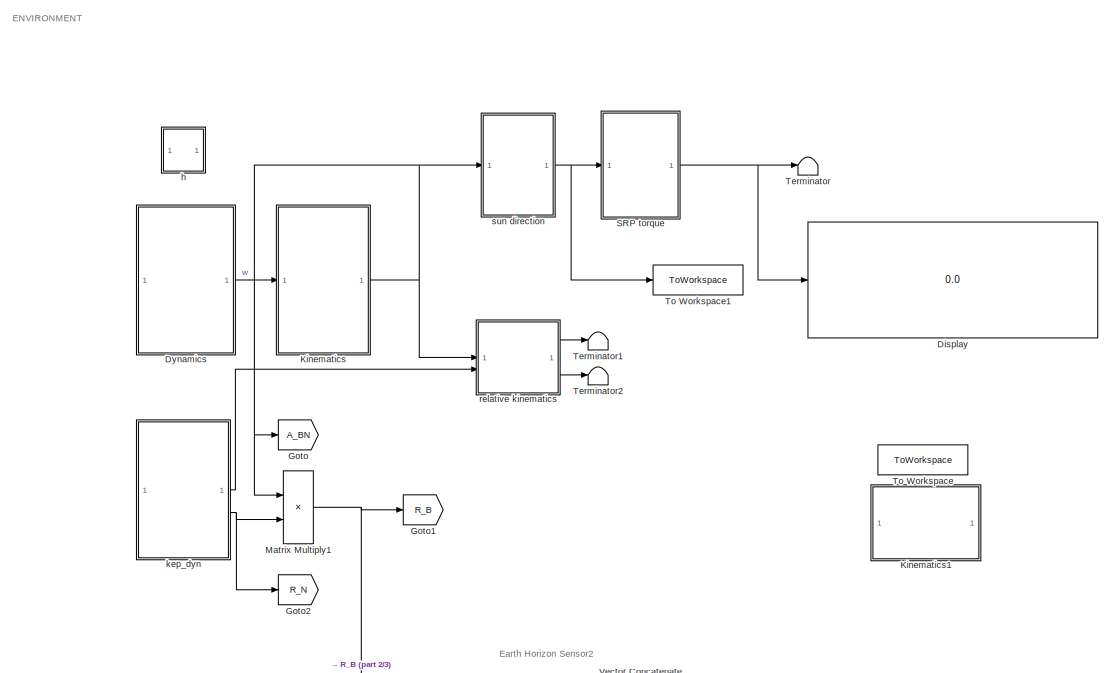
[diagram: root canvas - part 1/3, top left region]
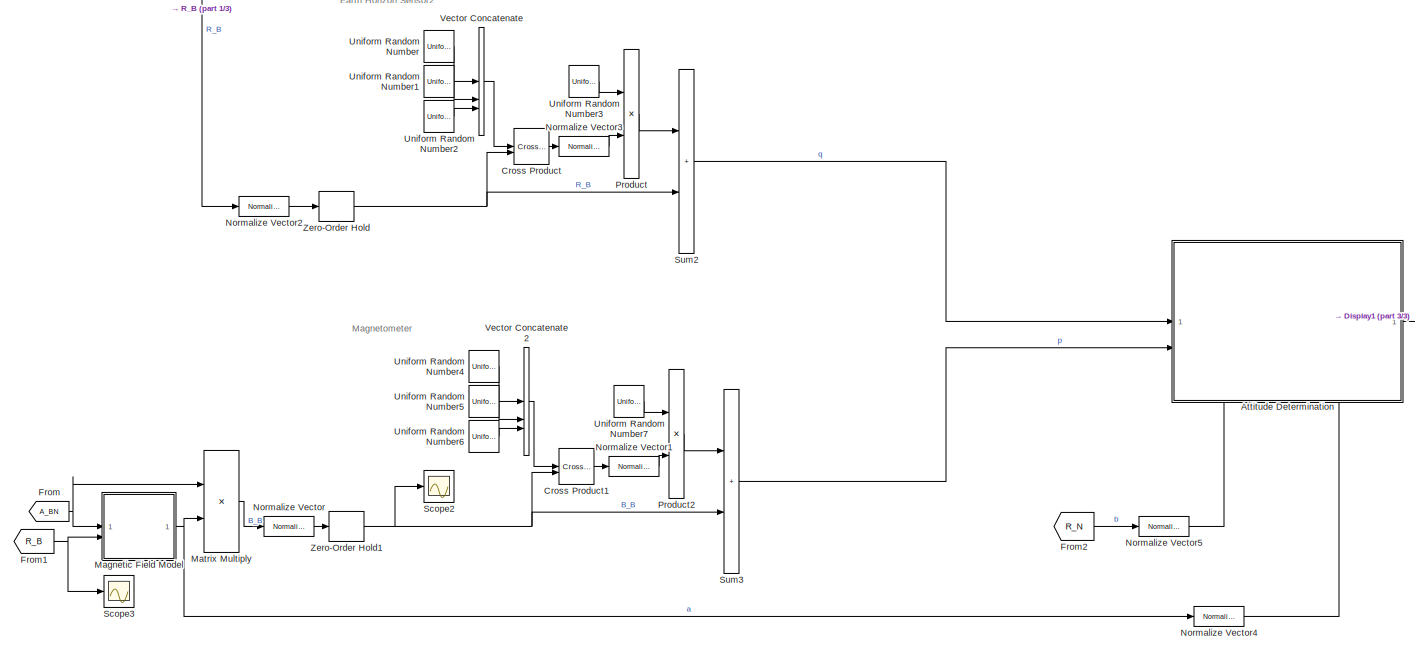
[diagram: root canvas - part 2/3, full width, bottom band]
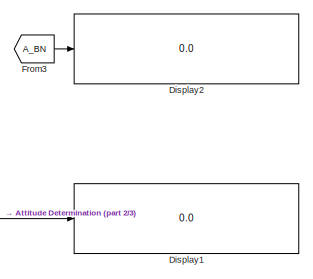
[diagram: root canvas - part 3/3, bottom right region]
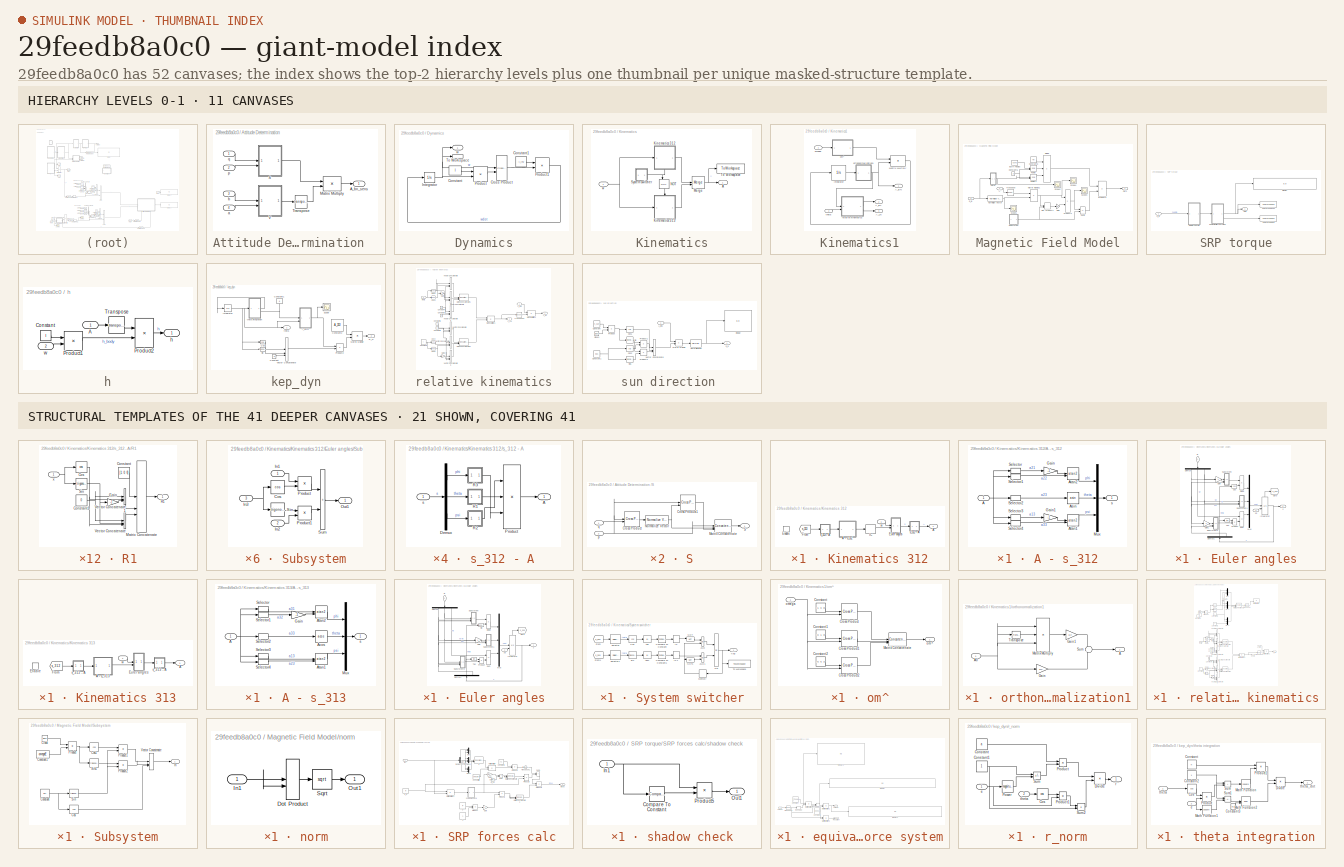
[diagram: thumbnail index - top-2 hierarchy levels (11 canvases) + 21 structural-template representatives of the remaining 41 canvases]
MODEL slx_29feedb8a0c0
KIND model
CONFIG AbsTol = auto
CONFIG EnableMultiTasking = off
CONFIG FixedStep = auto
CONFIG MaxStep = auto
CONFIG MinStep = auto
CONFIG RelTol = 1e-3
CONFIG SampleTimeConstraint = Unconstrained
CONFIG SolverName = VariableStepAuto
CONFIG StartTime = 0.0
CONFIG StopTime = 1000
BLOCK [SubSystem] Attitude Determination  
  PortSchema = {"entries":[{"content":{"sides":[{"content":{"connectorIds":["In1","In2"]},"type":"ConnectorPlacement.EquallySpacedRectSide","uuid":"730966cf-d0d7-44a0-92f0-b5324480e7cc"},{"content":{"connectorIds":["Out1"],"side":"RIGHT"},"type":"ConnectorPlacement.EquallySpacedRectSide","uuid":"c83e6b57-46fe-4a45-9824-d3495e15bf6a"},{"content":{"side":"TOP"},"type":"ConnectorPlacement.EquallySpacedRectSide","uu...<+383ch>
BLOCK [Outport] Attitude Determination  /A_bn_sens
BLOCK [Product] Attitude Determination  /Matrix Multiply
  Multiplication = Matrix(*)
BLOCK [SubSystem] Attitude Determination  /S
BLOCK [Reference] Attitude Determination  /S/Cross Product  REF=matrix_library/Cross Product
  LibrarySourceBlock = simulink/Matrix\nOperations/Cross Product
  SourceBlock = matrix_library/Cross Product
  SourceType = CrossProduct
BLOCK [Reference] Attitude Determination  /S/Cross Product1  REF=matrix_library/Cross Product
  LibrarySourceBlock = simulink/Matrix\nOperations/Cross Product
  SourceBlock = matrix_library/Cross Product
  SourceType = CrossProduct
BLOCK [Concatenate] Attitude Determination  /S/Matrix Concatenate
  ConcatenateDimension = 2
  Mode = Multidimensional array
  NumInputs = 3
BLOCK [Reference] Attitude Determination  /S/Normalize Vector  REF=vrlib/Utilities/Normalize Vector
  SourceBlock = vrlib/Utilities/Normalize Vector
  SourceType = Normalize Vector
BLOCK [Outport] Attitude Determination  /S/S
BLOCK [Inport] Attitude Determination  /S/p
  Port = 2
BLOCK [Inport] Attitude Determination  /S/q
BLOCK [Math] Attitude Determination  /Transpose
  Operator = transpose
BLOCK [SubSystem] Attitude Determination  /V
BLOCK [Reference] Attitude Determination  /V/Cross Product  REF=matrix_library/Cross Product
  LibrarySourceBlock = simulink/Matrix\nOperations/Cross Product
  SourceBlock = matrix_library/Cross Product
  SourceType = CrossProduct
BLOCK [Reference] Attitude Determination  /V/Cross Product1  REF=matrix_library/Cross Product
  LibrarySourceBlock = simulink/Matrix\nOperations/Cross Product
  SourceBlock = matrix_library/Cross Product
  SourceType = CrossProduct
BLOCK [Concatenate] Attitude Determination  /V/Matrix Concatenate
  ConcatenateDimension = 2
  Mode = Multidimensional array
  NumInputs = 3
BLOCK [Reference] Attitude Determination  /V/Normalize Vector  REF=vrlib/Utilities/Normalize Vector
  SourceBlock = vrlib/Utilities/Normalize Vector
  SourceType = Normalize Vector
BLOCK [Outport] Attitude Determination  /V/V
BLOCK [Inport] Attitude Determination  /V/a
  Port = 2
BLOCK [Inport] Attitude Determination  /V/b
BLOCK [Inport] Attitude Determination  /a
  Port = 4
BLOCK [Inport] Attitude Determination  /b
  Port = 3
BLOCK [Inport] Attitude Determination  /p
  Port = 2
BLOCK [Inport] Attitude Determination  /q
BLOCK [Reference] Cross Product  REF=matrix_library/Cross Product
  LibrarySourceBlock = simulink/Matrix\nOperations/Cross Product
  SourceBlock = matrix_library/Cross Product
  SourceType = CrossProduct
BLOCK [Reference] Cross Product1  REF=matrix_library/Cross Product
  LibrarySourceBlock = simulink/Matrix\nOperations/Cross Product
  SourceBlock = matrix_library/Cross Product
  SourceType = CrossProduct
BLOCK [Display] Display
  Commented = on
  Decimation = 1
BLOCK [Display] Display1
  Decimation = 1
BLOCK [Display] Display2
  Decimation = 1
BLOCK [SubSystem] Dynamics
BLOCK [Constant] Dynamics/Constant
  Value = I
BLOCK [Constant] Dynamics/Constant1
  Value = -I_inv
BLOCK [Reference] Dynamics/Cross Product  REF=matrix_library/Cross Product
  LibrarySourceBlock = simulink/Matrix\nOperations/Cross Product
  SourceBlock = matrix_library/Cross Product
  SourceType = CrossProduct
BLOCK [Integrator] Dynamics/Integrator
  InitialCondition = w0
BLOCK [Product] Dynamics/Product
  Multiplication = Matrix(*)
BLOCK [Product] Dynamics/Product1
  Multiplication = Matrix(*)
BLOCK [ToWorkspace] Dynamics/To Workspace
  FixptAsFi = on
  MaxDataPoints = inf
  SampleTime = -1
  SaveFormat = Timeseries
  VariableName = w
BLOCK [Outport] Dynamics/w
BLOCK [From] From
  GotoTag = A_BN
  TagVisibility = global
BLOCK [From] From1
  GotoTag = R_B
  TagVisibility = global
BLOCK [From] From2
  GotoTag = R_N
  TagVisibility = global
BLOCK [From] From3
  GotoTag = A_BN
  TagVisibility = global
BLOCK [Goto] Goto
  GotoTag = A_BN
  TagVisibility = global
BLOCK [Goto] Goto1
  GotoTag = R_B
  TagVisibility = global
BLOCK [Goto] Goto2
  GotoTag = R_N
  TagVisibility = global
BLOCK [SubSystem] Kinematics
BLOCK [Outport] Kinematics/A
BLOCK [SubSystem] Kinematics/Kinematics 312
  NameLocation = top
BLOCK [Outport] Kinematics/Kinematics 312/A
BLOCK [SubSystem] Kinematics/Kinematics 312/A - s_312
BLOCK [Inport] Kinematics/Kinematics 312/A - s_312/A
BLOCK [Trigonometry] Kinematics/Kinematics 312/A - s_312/Asin
  Operator = asin
BLOCK [Trigonometry] Kinematics/Kinematics 312/A - s_312/Atan1
  Operator = atan2
BLOCK [Trigonometry] Kinematics/Kinematics 312/A - s_312/Atan2
  Operator = atan2
BLOCK [Gain] Kinematics/Kinematics 312/A - s_312/Gain
  Gain = -1
BLOCK [Gain] Kinematics/Kinematics 312/A - s_312/Gain1
  Gain = -1
BLOCK [Mux] Kinematics/Kinematics 312/A - s_312/Mux
  DisplayOption = bar
  Inputs = 3
BLOCK [Selector] Kinematics/Kinematics 312/A - s_312/Selector
  IndexOptions = Index vector (dialog),Index vector (dialog)
  Indices = 2,1
  InputPortWidth = 3
  NumberOfDimensions = 2
  OutputSizes = 1,1
BLOCK [Selector] Kinematics/Kinematics 312/A - s_312/Selector1
  IndexOptions = Index vector (dialog),Index vector (dialog)
  Indices = 2,2
  InputPortWidth = 3
  NumberOfDimensions = 2
  OutputSizes = 1,1
BLOCK [Selector] Kinematics/Kinematics 312/A - s_312/Selector2
  IndexOptions = Index vector (dialog),Index vector (dialog)
  Indices = 2,3
  InputPortWidth = 3
  NumberOfDimensions = 2
  OutputSizes = 1,1
BLOCK [Selector] Kinematics/Kinematics 312/A - s_312/Selector3
  IndexOptions = Index vector (dialog),Index vector (dialog)
  Indices = 1,3
  InputPortWidth = 3
  NumberOfDimensions = 2
  OutputSizes = 1,1
BLOCK [Selector] Kinematics/Kinematics 312/A - s_312/Selector4
  IndexOptions = Index vector (dialog),Index vector (dialog)
  Indices = 3,3
  InputPortWidth = 3
  NumberOfDimensions = 2
  OutputSizes = 1,1
BLOCK [Outport] Kinematics/Kinematics 312/A - s_312/s
BLOCK [EnablePort] Kinematics/Kinematics 312/Enable
  StatesWhenEnabling = reset
BLOCK [SubSystem] Kinematics/Kinematics 312/Euler angles
BLOCK [Trigonometry] Kinematics/Kinematics 312/Euler angles/Cos
  Operator = cos
BLOCK [Demux] Kinematics/Kinematics 312/Euler angles/Demux
  NameLocation = left
  Outputs = 3
BLOCK [Demux] Kinematics/Kinematics 312/Euler angles/Demux1
  NameLocation = right
  Outputs = 3
BLOCK [Product] Kinematics/Kinematics 312/Euler angles/Divide
  Inputs = */
BLOCK [Gain] Kinematics/Kinematics 312/Euler angles/Gain
  Gain = -1
BLOCK [Gain] Kinematics/Kinematics 312/Euler angles/Gain1
  Gain = -1
BLOCK [Goto] Kinematics/Kinematics 312/Euler angles/Goto
  GotoTag = s_312
  TagVisibility = global
BLOCK [Integrator] Kinematics/Kinematics 312/Euler angles/Integrator
  InitialCondition = s0
  InitialConditionSource = external
  ShowStatePort = on
  WrapState = on
  WrappedStateLowerValue = 0
  WrappedStateUpperValue = 2*pi
BLOCK [Mux] Kinematics/Kinematics 312/Euler angles/Mux
  DisplayOption = bar
  Inputs = 3
BLOCK [Product] Kinematics/Kinematics 312/Euler angles/Product
BLOCK [SubSystem] Kinematics/Kinematics 312/Euler angles/Subsystem
BLOCK [Trigonometry] Kinematics/Kinematics 312/Euler angles/Subsystem/Cos
  Operator = cos
BLOCK [Inport] Kinematics/Kinematics 312/Euler angles/Subsystem/In1
BLOCK [Inport] Kinematics/Kinematics 312/Euler angles/Subsystem/In2
  Port = 2
BLOCK [Inport] Kinematics/Kinematics 312/Euler angles/Subsystem/In3
  Port = 3
BLOCK [Outport] Kinematics/Kinematics 312/Euler angles/Subsystem/Out1
BLOCK [Product] Kinematics/Kinematics 312/Euler angles/Subsystem/Product
BLOCK [Product] Kinematics/Kinematics 312/Euler angles/Subsystem/Product1
BLOCK [Trigonometry] Kinematics/Kinematics 312/Euler angles/Subsystem/Sin
BLOCK [Sum] Kinematics/Kinematics 312/Euler angles/Subsystem/Sum
  IconShape = rectangular
BLOCK [SubSystem] Kinematics/Kinematics 312/Euler angles/Subsystem1
BLOCK [Trigonometry] Kinematics/Kinematics 312/Euler angles/Subsystem1/Cos
  Operator = cos
BLOCK [Inport] Kinematics/Kinematics 312/Euler angles/Subsystem1/In1
BLOCK [Inport] Kinematics/Kinematics 312/Euler angles/Subsystem1/In2
  Port = 2
BLOCK [Inport] Kinematics/Kinematics 312/Euler angles/Subsystem1/In3
  Port = 3
BLOCK [Outport] Kinematics/Kinematics 312/Euler angles/Subsystem1/Out1
BLOCK [Product] Kinematics/Kinematics 312/Euler angles/Subsystem1/Product
BLOCK [Product] Kinematics/Kinematics 312/Euler angles/Subsystem1/Product1
BLOCK [Trigonometry] Kinematics/Kinematics 312/Euler angles/Subsystem1/Sin
BLOCK [Sum] Kinematics/Kinematics 312/Euler angles/Subsystem1/Sum
  IconShape = rectangular
BLOCK [SubSystem] Kinematics/Kinematics 312/Euler angles/Subsystem2
BLOCK [Trigonometry] Kinematics/Kinematics 312/Euler angles/Subsystem2/Cos
  Operator = cos
BLOCK [Inport] Kinematics/Kinematics 312/Euler angles/Subsystem2/In1
BLOCK [Inport] Kinematics/Kinematics 312/Euler angles/Subsystem2/In2
  Port = 2
BLOCK [Inport] Kinematics/Kinematics 312/Euler angles/Subsystem2/In3
  Port = 3
BLOCK [Outport] Kinematics/Kinematics 312/Euler angles/Subsystem2/Out1
BLOCK [Product] Kinematics/Kinematics 312/Euler angles/Subsystem2/Product
BLOCK [Product] Kinematics/Kinematics 312/Euler angles/Subsystem2/Product1
BLOCK [Trigonometry] Kinematics/Kinematics 312/Euler angles/Subsystem2/Sin
BLOCK [Sum] Kinematics/Kinematics 312/Euler angles/Subsystem2/Sum
  IconShape = rectangular
BLOCK [Sum] Kinematics/Kinematics 312/Euler angles/Sum
  IconShape = rectangular
  Inputs = +-
BLOCK [Trigonometry] Kinematics/Kinematics 312/Euler angles/Tan
  Operator = tan
BLOCK [Outport] Kinematics/Kinematics 312/Euler angles/s
BLOCK [Inport] Kinematics/Kinematics 312/Euler angles/s0
  Port = 2
BLOCK [Inport] Kinematics/Kinematics 312/Euler angles/w
  NameLocation = left
BLOCK [From] Kinematics/Kinematics 312/From
  GotoTag = s_313
  TagVisibility = global
BLOCK [InitialCondition] Kinematics/Kinematics 312/IC
  Value = s0
BLOCK [SubSystem] Kinematics/Kinematics 312/s_312 - A
BLOCK [Outport] Kinematics/Kinematics 312/s_312 - A/A
BLOCK [Demux] Kinematics/Kinematics 312/s_312 - A/Demux
  Outputs = 3
BLOCK [Product] Kinematics/Kinematics 312/s_312 - A/Product
  Inputs = 3
  Multiplication = Matrix(*)
BLOCK [SubSystem] Kinematics/Kinematics 312/s_312 - A/R1
BLOCK [Constant] Kinematics/Kinematics 312/s_312 - A/R1/Constant
  Value = [1; 0; 0]
BLOCK [Constant] Kinematics/Kinematics 312/s_312 - A/R1/Constant1
  Value = 0
BLOCK [Trigonometry] Kinematics/Kinematics 312/s_312 - A/R1/Cos
  Operator = cos
BLOCK [Gain] Kinematics/Kinematics 312/s_312 - A/R1/Gain
  Gain = -1
BLOCK [Concatenate] Kinematics/Kinematics 312/s_312 - A/R1/Matrix Concatenate
  ConcatenateDimension = 2
  Mode = Multidimensional array
  NumInputs = 3
BLOCK [Outport] Kinematics/Kinematics 312/s_312 - A/R1/R1
BLOCK [Trigonometry] Kinematics/Kinematics 312/s_312 - A/R1/Sin
BLOCK [Concatenate] Kinematics/Kinematics 312/s_312 - A/R1/Vector Concatenate
  NumInputs = 3
BLOCK [Concatenate] Kinematics/Kinematics 312/s_312 - A/R1/Vector Concatenate1
  NumInputs = 3
BLOCK [Inport] Kinematics/Kinematics 312/s_312 - A/R1/x
BLOCK [SubSystem] Kinematics/Kinematics 312/s_312 - A/R2
BLOCK [Constant] Kinematics/Kinematics 312/s_312 - A/R2/Constant
  Value = [0; 1; 0]
BLOCK [Constant] Kinematics/Kinematics 312/s_312 - A/R2/Constant1
  Value = 0
BLOCK [Trigonometry] Kinematics/Kinematics 312/s_312 - A/R2/Cos
  Operator = cos
BLOCK [Gain] Kinematics/Kinematics 312/s_312 - A/R2/Gain
  Gain = -1
BLOCK [Concatenate] Kinematics/Kinematics 312/s_312 - A/R2/Matrix Concatenate
  ConcatenateDimension = 2
  Mode = Multidimensional array
  NumInputs = 3
BLOCK [Outport] Kinematics/Kinematics 312/s_312 - A/R2/R2
BLOCK [Trigonometry] Kinematics/Kinematics 312/s_312 - A/R2/Sin
BLOCK [Concatenate] Kinematics/Kinematics 312/s_312 - A/R2/Vector Concatenate
  NumInputs = 3
BLOCK [Concatenate] Kinematics/Kinematics 312/s_312 - A/R2/Vector Concatenate1
  NumInputs = 3
BLOCK [Inport] Kinematics/Kinematics 312/s_312 - A/R2/x
BLOCK [SubSystem] Kinematics/Kinematics 312/s_312 - A/R3
BLOCK [Constant] Kinematics/Kinematics 312/s_312 - A/R3/Constant
  Value = [0; 0; 1]
BLOCK [Constant] Kinematics/Kinematics 312/s_312 - A/R3/Constant1
  Value = 0
BLOCK [Trigonometry] Kinematics/Kinematics 312/s_312 - A/R3/Cos
  Operator = cos
BLOCK [Gain] Kinematics/Kinematics 312/s_312 - A/R3/Gain
  Gain = -1
BLOCK [Concatenate] Kinematics/Kinematics 312/s_312 - A/R3/Matrix Concatenate
  ConcatenateDimension = 2
  Mode = Multidimensional array
  NumInputs = 3
BLOCK [Outport] Kinematics/Kinematics 312/s_312 - A/R3/R3
BLOCK [Trigonometry] Kinematics/Kinematics 312/s_312 - A/R3/Sin
BLOCK [Concatenate] Kinematics/Kinematics 312/s_312 - A/R3/Vector Concatenate
  NumInputs = 3
BLOCK [Concatenate] Kinematics/Kinematics 312/s_312 - A/R3/Vector Concatenate1
  NumInputs = 3
BLOCK [Inport] Kinematics/Kinematics 312/s_312 - A/R3/x
BLOCK [Inport] Kinematics/Kinematics 312/s_312 - A/s
BLOCK [SubSystem] Kinematics/Kinematics 312/s_313 - A
BLOCK [Outport] Kinematics/Kinematics 312/s_313 - A/A
BLOCK [Demux] Kinematics/Kinematics 312/s_313 - A/Demux
  Outputs = 3
BLOCK [Product] Kinematics/Kinematics 312/s_313 - A/Product
  Inputs = 3
  Multiplication = Matrix(*)
BLOCK [SubSystem] Kinematics/Kinematics 312/s_313 - A/R1
BLOCK [Constant] Kinematics/Kinematics 312/s_313 - A/R1/Constant
  Value = [1; 0; 0]
BLOCK [Constant] Kinematics/Kinematics 312/s_313 - A/R1/Constant1
  Value = 0
BLOCK [Trigonometry] Kinematics/Kinematics 312/s_313 - A/R1/Cos
  Operator = cos
BLOCK [Gain] Kinematics/Kinematics 312/s_313 - A/R1/Gain
  Gain = -1
BLOCK [Concatenate] Kinematics/Kinematics 312/s_313 - A/R1/Matrix Concatenate
  ConcatenateDimension = 2
  Mode = Multidimensional array
  NumInputs = 3
BLOCK [Outport] Kinematics/Kinematics 312/s_313 - A/R1/R1
BLOCK [Trigonometry] Kinematics/Kinematics 312/s_313 - A/R1/Sin
BLOCK [Concatenate] Kinematics/Kinematics 312/s_313 - A/R1/Vector Concatenate
  NumInputs = 3
BLOCK [Concatenate] Kinematics/Kinematics 312/s_313 - A/R1/Vector Concatenate1
  NumInputs = 3
BLOCK [Inport] Kinematics/Kinematics 312/s_313 - A/R1/x
BLOCK [SubSystem] Kinematics/Kinematics 312/s_313 - A/R3_1
BLOCK [Constant] Kinematics/Kinematics 312/s_313 - A/R3_1/Constant
  Value = [0; 0; 1]
BLOCK [Constant] Kinematics/Kinematics 312/s_313 - A/R3_1/Constant1
  Value = 0
BLOCK [Trigonometry] Kinematics/Kinematics 312/s_313 - A/R3_1/Cos
  Operator = cos
BLOCK [Gain] Kinematics/Kinematics 312/s_313 - A/R3_1/Gain
  Gain = -1
BLOCK [Concatenate] Kinematics/Kinematics 312/s_313 - A/R3_1/Matrix Concatenate
  ConcatenateDimension = 2
  Mode = Multidimensional array
  NumInputs = 3
BLOCK [Outport] Kinematics/Kinematics 312/s_313 - A/R3_1/R3
BLOCK [Trigonometry] Kinematics/Kinematics 312/s_313 - A/R3_1/Sin
BLOCK [Concatenate] Kinematics/Kinematics 312/s_313 - A/R3_1/Vector Concatenate
  NumInputs = 3
BLOCK [Concatenate] Kinematics/Kinematics 312/s_313 - A/R3_1/Vector Concatenate1
  NumInputs = 3
BLOCK [Inport] Kinematics/Kinematics 312/s_313 - A/R3_1/x
BLOCK [SubSystem] Kinematics/Kinematics 312/s_313 - A/R3_2
BLOCK [Constant] Kinematics/Kinematics 312/s_313 - A/R3_2/Constant
  Value = [0; 0; 1]
BLOCK [Constant] Kinematics/Kinematics 312/s_313 - A/R3_2/Constant1
  Value = 0
BLOCK [Trigonometry] Kinematics/Kinematics 312/s_313 - A/R3_2/Cos
  Operator = cos
BLOCK [Gain] Kinematics/Kinematics 312/s_313 - A/R3_2/Gain
  Gain = -1
BLOCK [Concatenate] Kinematics/Kinematics 312/s_313 - A/R3_2/Matrix Concatenate
  ConcatenateDimension = 2
  Mode = Multidimensional array
  NumInputs = 3
BLOCK [Outport] Kinematics/Kinematics 312/s_313 - A/R3_2/R3
BLOCK [Trigonometry] Kinematics/Kinematics 312/s_313 - A/R3_2/Sin
BLOCK [Concatenate] Kinematics/Kinematics 312/s_313 - A/R3_2/Vector Concatenate
  NumInputs = 3
BLOCK [Concatenate] Kinematics/Kinematics 312/s_313 - A/R3_2/Vector Concatenate1
  NumInputs = 3
BLOCK [Inport] Kinematics/Kinematics 312/s_313 - A/R3_2/x
BLOCK [Inport] Kinematics/Kinematics 312/s_313 - A/s
BLOCK [Inport] Kinematics/Kinematics 312/w
BLOCK [SubSystem] Kinematics/Kinematics 313
BLOCK [Outport] Kinematics/Kinematics 313/A
BLOCK [SubSystem] Kinematics/Kinematics 313/A - s_313
BLOCK [Inport] Kinematics/Kinematics 313/A - s_313/A
BLOCK [Trigonometry] Kinematics/Kinematics 313/A - s_313/Acos
  Operator = acos
BLOCK [Trigonometry] Kinematics/Kinematics 313/A - s_313/Atan1
  Operator = atan2
BLOCK [Trigonometry] Kinematics/Kinematics 313/A - s_313/Atan2
  Operator = atan2
BLOCK [Gain] Kinematics/Kinematics 313/A - s_313/Gain
  Gain = -1
BLOCK [Mux] Kinematics/Kinematics 313/A - s_313/Mux
  DisplayOption = bar
  Inputs = 3
BLOCK [Selector] Kinematics/Kinematics 313/A - s_313/Selector
  IndexOptions = Index vector (dialog),Index vector (dialog)
  Indices = 3,1
  InputPortWidth = 3
  NumberOfDimensions = 2
  OutputSizes = 1,1
BLOCK [Selector] Kinematics/Kinematics 313/A - s_313/Selector1
  IndexOptions = Index vector (dialog),Index vector (dialog)
  Indices = 3,2
  InputPortWidth = 3
  NumberOfDimensions = 2
  OutputSizes = 1,1
BLOCK [Selector] Kinematics/Kinematics 313/A - s_313/Selector2
  IndexOptions = Index vector (dialog),Index vector (dialog)
  Indices = 3,3
  InputPortWidth = 3
  NumberOfDimensions = 2
  OutputSizes = 1,1
BLOCK [Selector] Kinematics/Kinematics 313/A - s_313/Selector3
  IndexOptions = Index vector (dialog),Index vector (dialog)
  Indices = 1,3
  InputPortWidth = 3
  NumberOfDimensions = 2
  OutputSizes = 1,1
BLOCK [Selector] Kinematics/Kinematics 313/A - s_313/Selector4
  IndexOptions = Index vector (dialog),Index vector (dialog)
  Indices = 2,3
  InputPortWidth = 3
  NumberOfDimensions = 2
  OutputSizes = 1,1
BLOCK [Outport] Kinematics/Kinematics 313/A - s_313/s
BLOCK [EnablePort] Kinematics/Kinematics 313/Enable
  StatesWhenEnabling = reset
BLOCK [SubSystem] Kinematics/Kinematics 313/Euler angles
BLOCK [Demux] Kinematics/Kinematics 313/Euler angles/Demux
  NameLocation = left
  Outputs = 3
BLOCK [Demux] Kinematics/Kinematics 313/Euler angles/Demux1
  NameLocation = right
  Outputs = 3
BLOCK [Product] Kinematics/Kinematics 313/Euler angles/Divide
  Inputs = */
BLOCK [Gain] Kinematics/Kinematics 313/Euler angles/Gain
  Gain = -1
BLOCK [Goto] Kinematics/Kinematics 313/Euler angles/Goto
  GotoTag = s_313
  TagVisibility = global
BLOCK [Integrator] Kinematics/Kinematics 313/Euler angles/Integrator
  InitialCondition = s0
  InitialConditionSource = external
  ShowStatePort = on
  WrapState = on
  WrappedStateLowerValue = 0
  WrappedStateUpperValue = 2*pi
BLOCK [Mux] Kinematics/Kinematics 313/Euler angles/Mux
  DisplayOption = bar
  Inputs = 3
BLOCK [Product] Kinematics/Kinematics 313/Euler angles/Product
  Inputs = /*
BLOCK [Trigonometry] Kinematics/Kinematics 313/Euler angles/Sin
BLOCK [SubSystem] Kinematics/Kinematics 313/Euler angles/Subsystem
BLOCK [Trigonometry] Kinematics/Kinematics 313/Euler angles/Subsystem/Cos
  Operator = cos
BLOCK [Inport] Kinematics/Kinematics 313/Euler angles/Subsystem/In1
BLOCK [Inport] Kinematics/Kinematics 313/Euler angles/Subsystem/In2
  Port = 2
BLOCK [Inport] Kinematics/Kinematics 313/Euler angles/Subsystem/In3
  Port = 3
BLOCK [Outport] Kinematics/Kinematics 313/Euler angles/Subsystem/Out1
BLOCK [Product] Kinematics/Kinematics 313/Euler angles/Subsystem/Product
BLOCK [Product] Kinematics/Kinematics 313/Euler angles/Subsystem/Product1
BLOCK [Trigonometry] Kinematics/Kinematics 313/Euler angles/Subsystem/Sin
BLOCK [Sum] Kinematics/Kinematics 313/Euler angles/Subsystem/Sum
  IconShape = rectangular
BLOCK [SubSystem] Kinematics/Kinematics 313/Euler angles/Subsystem1
BLOCK [Trigonometry] Kinematics/Kinematics 313/Euler angles/Subsystem1/Cos
  Operator = cos
BLOCK [Inport] Kinematics/Kinematics 313/Euler angles/Subsystem1/In1
BLOCK [Inport] Kinematics/Kinematics 313/Euler angles/Subsystem1/In2
  Port = 2
BLOCK [Inport] Kinematics/Kinematics 313/Euler angles/Subsystem1/In3
  Port = 3
BLOCK [Outport] Kinematics/Kinematics 313/Euler angles/Subsystem1/Out1
BLOCK [Product] Kinematics/Kinematics 313/Euler angles/Subsystem1/Product
BLOCK [Product] Kinematics/Kinematics 313/Euler angles/Subsystem1/Product1
BLOCK [Trigonometry] Kinematics/Kinematics 313/Euler angles/Subsystem1/Sin
BLOCK [Sum] Kinematics/Kinematics 313/Euler angles/Subsystem1/Sum
  IconShape = rectangular
BLOCK [SubSystem] Kinematics/Kinematics 313/Euler angles/Subsystem2
BLOCK [Trigonometry] Kinematics/Kinematics 313/Euler angles/Subsystem2/Cos
  Operator = cos
BLOCK [Inport] Kinematics/Kinematics 313/Euler angles/Subsystem2/In1
BLOCK [Inport] Kinematics/Kinematics 313/Euler angles/Subsystem2/In2
  Port = 2
BLOCK [Inport] Kinematics/Kinematics 313/Euler angles/Subsystem2/In3
  Port = 3
BLOCK [Outport] Kinematics/Kinematics 313/Euler angles/Subsystem2/Out1
BLOCK [Product] Kinematics/Kinematics 313/Euler angles/Subsystem2/Product
BLOCK [Product] Kinematics/Kinematics 313/Euler angles/Subsystem2/Product1
BLOCK [Trigonometry] Kinematics/Kinematics 313/Euler angles/Subsystem2/Sin
BLOCK [Sum] Kinematics/Kinematics 313/Euler angles/Subsystem2/Sum
  IconShape = rectangular
BLOCK [Sum] Kinematics/Kinematics 313/Euler angles/Sum
  IconShape = rectangular
  Inputs = +-
BLOCK [Trigonometry] Kinematics/Kinematics 313/Euler angles/Tan
  Operator = tan
BLOCK [Outport] Kinematics/Kinematics 313/Euler angles/s
BLOCK [Inport] Kinematics/Kinematics 313/Euler angles/s0
  Port = 2
BLOCK [Inport] Kinematics/Kinematics 313/Euler angles/w
  NameLocation = left
BLOCK [From] Kinematics/Kinematics 313/From
  GotoTag = s_312
  TagVisibility = global
BLOCK [SubSystem] Kinematics/Kinematics 313/s_312 - A
BLOCK [Outport] Kinematics/Kinematics 313/s_312 - A/A
BLOCK [Demux] Kinematics/Kinematics 313/s_312 - A/Demux
  NameLocation = top
  Outputs = 3
BLOCK [Product] Kinematics/Kinematics 313/s_312 - A/Product
  Inputs = 3
  Multiplication = Matrix(*)
BLOCK [SubSystem] Kinematics/Kinematics 313/s_312 - A/R1
BLOCK [Constant] Kinematics/Kinematics 313/s_312 - A/R1/Constant
  Value = [1; 0; 0]
BLOCK [Constant] Kinematics/Kinematics 313/s_312 - A/R1/Constant1
  Value = 0
BLOCK [Trigonometry] Kinematics/Kinematics 313/s_312 - A/R1/Cos
  Operator = cos
BLOCK [Gain] Kinematics/Kinematics 313/s_312 - A/R1/Gain
  Gain = -1
BLOCK [Concatenate] Kinematics/Kinematics 313/s_312 - A/R1/Matrix Concatenate
  ConcatenateDimension = 2
  Mode = Multidimensional array
  NumInputs = 3
BLOCK [Outport] Kinematics/Kinematics 313/s_312 - A/R1/R1
BLOCK [Trigonometry] Kinematics/Kinematics 313/s_312 - A/R1/Sin
BLOCK [Concatenate] Kinematics/Kinematics 313/s_312 - A/R1/Vector Concatenate
  NumInputs = 3
BLOCK [Concatenate] Kinematics/Kinematics 313/s_312 - A/R1/Vector Concatenate1
  NumInputs = 3
BLOCK [Inport] Kinematics/Kinematics 313/s_312 - A/R1/x
BLOCK [SubSystem] Kinematics/Kinematics 313/s_312 - A/R2
BLOCK [Constant] Kinematics/Kinematics 313/s_312 - A/R2/Constant
  Value = [0; 1; 0]
BLOCK [Constant] Kinematics/Kinematics 313/s_312 - A/R2/Constant1
  Value = 0
BLOCK [Trigonometry] Kinematics/Kinematics 313/s_312 - A/R2/Cos
  Operator = cos
BLOCK [Gain] Kinematics/Kinematics 313/s_312 - A/R2/Gain
  Gain = -1
BLOCK [Concatenate] Kinematics/Kinematics 313/s_312 - A/R2/Matrix Concatenate
  ConcatenateDimension = 2
  Mode = Multidimensional array
  NumInputs = 3
BLOCK [Outport] Kinematics/Kinematics 313/s_312 - A/R2/R2
BLOCK [Trigonometry] Kinematics/Kinematics 313/s_312 - A/R2/Sin
BLOCK [Concatenate] Kinematics/Kinematics 313/s_312 - A/R2/Vector Concatenate
  NumInputs = 3
BLOCK [Concatenate] Kinematics/Kinematics 313/s_312 - A/R2/Vector Concatenate1
  NumInputs = 3
BLOCK [Inport] Kinematics/Kinematics 313/s_312 - A/R2/x
BLOCK [SubSystem] Kinematics/Kinematics 313/s_312 - A/R3
BLOCK [Constant] Kinematics/Kinematics 313/s_312 - A/R3/Constant
  Value = [0; 0; 1]
BLOCK [Constant] Kinematics/Kinematics 313/s_312 - A/R3/Constant1
  Value = 0
BLOCK [Trigonometry] Kinematics/Kinematics 313/s_312 - A/R3/Cos
  Operator = cos
BLOCK [Gain] Kinematics/Kinematics 313/s_312 - A/R3/Gain
  Gain = -1
BLOCK [Concatenate] Kinematics/Kinematics 313/s_312 - A/R3/Matrix Concatenate
  ConcatenateDimension = 2
  Mode = Multidimensional array
  NumInputs = 3
BLOCK [Outport] Kinematics/Kinematics 313/s_312 - A/R3/R3
BLOCK [Trigonometry] Kinematics/Kinematics 313/s_312 - A/R3/Sin
BLOCK [Concatenate] Kinematics/Kinematics 313/s_312 - A/R3/Vector Concatenate
  NumInputs = 3
BLOCK [Concatenate] Kinematics/Kinematics 313/s_312 - A/R3/Vector Concatenate1
  NumInputs = 3
BLOCK [Inport] Kinematics/Kinematics 313/s_312 - A/R3/x
BLOCK [Inport] Kinematics/Kinematics 313/s_312 - A/s
BLOCK [SubSystem] Kinematics/Kinematics 313/s_313 - A
BLOCK [Outport] Kinematics/Kinematics 313/s_313 - A/A
BLOCK [Demux] Kinematics/Kinematics 313/s_313 - A/Demux
  Outputs = 3
BLOCK [Product] Kinematics/Kinematics 313/s_313 - A/Product
  Inputs = 3
  Multiplication = Matrix(*)
BLOCK [SubSystem] Kinematics/Kinematics 313/s_313 - A/R1
BLOCK [Constant] Kinematics/Kinematics 313/s_313 - A/R1/Constant
  Value = [1; 0; 0]
BLOCK [Constant] Kinematics/Kinematics 313/s_313 - A/R1/Constant1
  Value = 0
BLOCK [Trigonometry] Kinematics/Kinematics 313/s_313 - A/R1/Cos
  Operator = cos
BLOCK [Gain] Kinematics/Kinematics 313/s_313 - A/R1/Gain
  Gain = -1
BLOCK [Concatenate] Kinematics/Kinematics 313/s_313 - A/R1/Matrix Concatenate
  ConcatenateDimension = 2
  Mode = Multidimensional array
  NumInputs = 3
BLOCK [Outport] Kinematics/Kinematics 313/s_313 - A/R1/R1
BLOCK [Trigonometry] Kinematics/Kinematics 313/s_313 - A/R1/Sin
BLOCK [Concatenate] Kinematics/Kinematics 313/s_313 - A/R1/Vector Concatenate
  NumInputs = 3
BLOCK [Concatenate] Kinematics/Kinematics 313/s_313 - A/R1/Vector Concatenate1
  NumInputs = 3
BLOCK [Inport] Kinematics/Kinematics 313/s_313 - A/R1/x
BLOCK [SubSystem] Kinematics/Kinematics 313/s_313 - A/R3_1
BLOCK [Constant] Kinematics/Kinematics 313/s_313 - A/R3_1/Constant
  Value = [0; 0; 1]
BLOCK [Constant] Kinematics/Kinematics 313/s_313 - A/R3_1/Constant1
  Value = 0
BLOCK [Trigonometry] Kinematics/Kinematics 313/s_313 - A/R3_1/Cos
  Operator = cos
BLOCK [Gain] Kinematics/Kinematics 313/s_313 - A/R3_1/Gain
  Gain = -1
BLOCK [Concatenate] Kinematics/Kinematics 313/s_313 - A/R3_1/Matrix Concatenate
  ConcatenateDimension = 2
  Mode = Multidimensional array
  NumInputs = 3
BLOCK [Outport] Kinematics/Kinematics 313/s_313 - A/R3_1/R3
BLOCK [Trigonometry] Kinematics/Kinematics 313/s_313 - A/R3_1/Sin
BLOCK [Concatenate] Kinematics/Kinematics 313/s_313 - A/R3_1/Vector Concatenate
  NumInputs = 3
BLOCK [Concatenate] Kinematics/Kinematics 313/s_313 - A/R3_1/Vector Concatenate1
  NumInputs = 3
BLOCK [Inport] Kinematics/Kinematics 313/s_313 - A/R3_1/x
BLOCK [SubSystem] Kinematics/Kinematics 313/s_313 - A/R3_2
BLOCK [Constant] Kinematics/Kinematics 313/s_313 - A/R3_2/Constant
  Value = [0; 0; 1]
BLOCK [Constant] Kinematics/Kinematics 313/s_313 - A/R3_2/Constant1
  Value = 0
BLOCK [Trigonometry] Kinematics/Kinematics 313/s_313 - A/R3_2/Cos
  Operator = cos
BLOCK [Gain] Kinematics/Kinematics 313/s_313 - A/R3_2/Gain
  Gain = -1
BLOCK [Concatenate] Kinematics/Kinematics 313/s_313 - A/R3_2/Matrix Concatenate
  ConcatenateDimension = 2
  Mode = Multidimensional array
  NumInputs = 3
BLOCK [Outport] Kinematics/Kinematics 313/s_313 - A/R3_2/R3
BLOCK [Trigonometry] Kinematics/Kinematics 313/s_313 - A/R3_2/Sin
BLOCK [Concatenate] Kinematics/Kinematics 313/s_313 - A/R3_2/Vector Concatenate
  NumInputs = 3
BLOCK [Concatenate] Kinematics/Kinematics 313/s_313 - A/R3_2/Vector Concatenate1
  NumInputs = 3
BLOCK [Inport] Kinematics/Kinematics 313/s_313 - A/R3_2/x
BLOCK [Inport] Kinematics/Kinematics 313/s_313 - A/s
BLOCK [Inport] Kinematics/Kinematics 313/w
BLOCK [Merge] Kinematics/Merge
BLOCK [Logic] Kinematics/NOT
  AllPortsSameDT = off
  IconShape = distinctive
  NameLocation = left
  Operator = NOT
  OutDataTypeStr = boolean
BLOCK [SubSystem] Kinematics/System switcher
BLOCK [Logic] Kinematics/System switcher/AND
  AllPortsSameDT = off
  IconShape = distinctive
  OutDataTypeStr = boolean
BLOCK [Logic] Kinematics/System switcher/AND1
  AllPortsSameDT = off
  IconShape = distinctive
  OutDataTypeStr = boolean
BLOCK [Abs] Kinematics/System switcher/Abs
  SaturateOnIntegerOverflow = off
BLOCK [Abs] Kinematics/System switcher/Abs1
  SaturateOnIntegerOverflow = off
BLOCK [Reference] Kinematics/System switcher/Compare To Constant  REF=simulink/Logic and Bit
Operations/Compare
To Constant
  SourceBlock = simulink/Logic and Bit\nOperations/Compare\nTo Constant
  SourceType = Compare To Constant
BLOCK [Reference] Kinematics/System switcher/Compare To Constant1  REF=simulink/Logic and Bit
Operations/Compare
To Constant
  SourceBlock = simulink/Logic and Bit\nOperations/Compare\nTo Constant
  SourceType = Compare To Constant
BLOCK [Trigonometry] Kinematics/System switcher/Cos
  Operator = cos
BLOCK [From] Kinematics/System switcher/From
  GotoTag = s_312
  TagVisibility = global
BLOCK [From] Kinematics/System switcher/From1
  GotoTag = s_313
  TagVisibility = global
BLOCK [InitialCondition] Kinematics/System switcher/IC
  Value = 0
BLOCK [InitialCondition] Kinematics/System switcher/IC1
  Value = 0
BLOCK [Memory] Kinematics/System switcher/Memory
  InitialCondition = 1
  NameLocation = top
BLOCK [Logic] Kinematics/System switcher/NOT
  AllPortsSameDT = off
  IconShape = distinctive
  Operator = NOT
  OutDataTypeStr = boolean
BLOCK [Logic] Kinematics/System switcher/NOT1
  AllPortsSameDT = off
  IconShape = distinctive
  Operator = NOT
  OutDataTypeStr = boolean
BLOCK [Logic] Kinematics/System switcher/OR
  AllPortsSameDT = off
  IconShape = distinctive
  Operator = OR
  OutDataTypeStr = boolean
BLOCK [Selector] Kinematics/System switcher/Selector
  IndexOptions = Index vector (dialog)
  Indices = 2
  InputPortWidth = 3
  OutputSizes = 1
BLOCK [Selector] Kinematics/System switcher/Selector1
  IndexOptions = Index vector (dialog)
  Indices = 2
  InputPortWidth = 3
  OutputSizes = 1
BLOCK [Trigonometry] Kinematics/System switcher/Sin
BLOCK [ToWorkspace] Kinematics/System switcher/To Workspace
  FixptAsFi = on
  MaxDataPoints = inf
  SampleTime = -1
  SaveFormat = Timeseries
  VariableName = b
BLOCK [Outport] Kinematics/System switcher/flag
BLOCK [ToWorkspace] Kinematics/To Workspace
  FixptAsFi = on
  MaxDataPoints = inf
  SampleTime = -1
  SaveFormat = Timeseries
  VariableName = A
BLOCK [Inport] Kinematics/w
BLOCK [SubSystem] Kinematics1
  Commented = on
  PortSchema = {"entries":[{"content":{"sides":[{"content":{"connectorIds":["In1"]},"type":"ConnectorPlacement.EquallySpacedRectSide","uuid":"c78567b3-0f16-47a3-80bd-0d4e0067a31f"},{"content":{"connectorIds":["Out1","Out2","Out3"],"side":"RIGHT"},"type":"ConnectorPlacement.EquallySpacedRectSide","uuid":"73465dec-5215-44e7-a1cc-75f9f3cf9a64"},{"content":{"side":"TOP"},"type":"ConnectorPlacement.EquallySpacedRectS...<+385ch>
BLOCK [Outport] Kinematics1/A_BL
  Port = 2
BLOCK [Outport] Kinematics1/A_BN
BLOCK [Outport] Kinematics1/A_LN
  Port = 3
BLOCK [Integrator] Kinematics1/Integrator
  InitialCondition = eye(3)
BLOCK [Product] Kinematics1/Matrix Multiply
  Multiplication = Matrix(*)
BLOCK [SubSystem] Kinematics1/om^
BLOCK [Outport] Kinematics1/om^/ om ^
BLOCK [Constant] Kinematics1/om^/Constant
  Value = [1; 0; 0]
BLOCK [Constant] Kinematics1/om^/Constant1
  Value = [0; 1; 0]
BLOCK [Constant] Kinematics1/om^/Constant2
  Value = [0; 0; 1]
BLOCK [Reference] Kinematics1/om^/Cross Product  REF=matrix_library/Cross Product
  LibrarySourceBlock = simulink/Matrix\nOperations/Cross Product
  SourceBlock = matrix_library/Cross Product
  SourceType = CrossProduct
BLOCK [Reference] Kinematics1/om^/Cross Product1  REF=matrix_library/Cross Product
  LibrarySourceBlock = simulink/Matrix\nOperations/Cross Product
  SourceBlock = matrix_library/Cross Product
  SourceType = CrossProduct
BLOCK [Reference] Kinematics1/om^/Cross Product2  REF=matrix_library/Cross Product
  LibrarySourceBlock = simulink/Matrix\nOperations/Cross Product
  SourceBlock = matrix_library/Cross Product
  SourceType = CrossProduct
BLOCK [Concatenate] Kinematics1/om^/Matrix Concatenate
  ConcatenateDimension = 2
  Mode = Multidimensional array
  NumInputs = 3
BLOCK [Inport] Kinematics1/om^/omega
BLOCK [Inport] Kinematics1/omega
BLOCK [SubSystem] Kinematics1/orthonormalization1
  NameLocation = top
BLOCK [Outport] Kinematics1/orthonormalization1/A
BLOCK [Inport] Kinematics1/orthonormalization1/A0
BLOCK [Gain] Kinematics1/orthonormalization1/Gain
  Gain = 3/2
BLOCK [Gain] Kinematics1/orthonormalization1/Gain1
  Gain = 1/2
BLOCK [Product] Kinematics1/orthonormalization1/Matrix Multiply
  Inputs = 3
  Multiplication = Matrix(*)
BLOCK [Sum] Kinematics1/orthonormalization1/Sum
  Inputs = -|+
BLOCK [Reference] Kinematics1/orthonormalization1/Transpose  REF=matrix_library/Transpose
  LibrarySourceBlock = simulink/Matrix\nOperations/Transpose
  SourceBlock = matrix_library/Transpose
  SourceType = Transpose
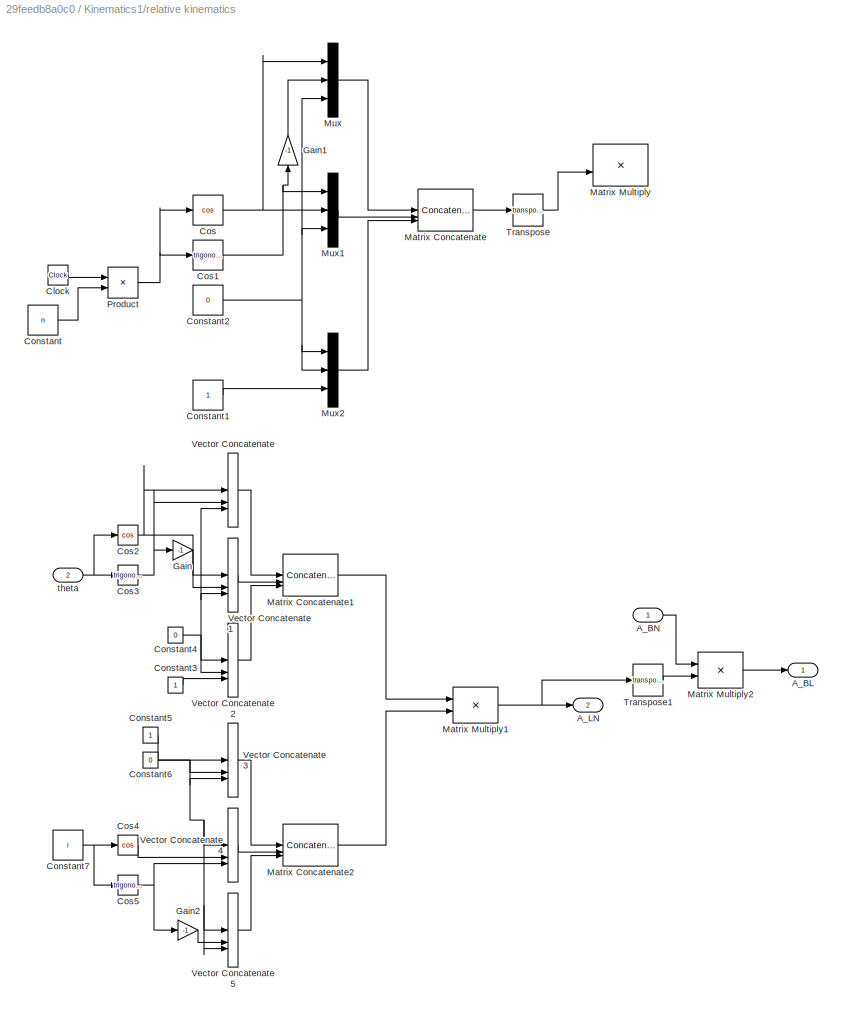
BLOCK [SubSystem] Kinematics1/relative kinematics
BLOCK [Outport] Kinematics1/relative kinematics/A_BL
BLOCK [Inport] Kinematics1/relative kinematics/A_BN
BLOCK [Outport] Kinematics1/relative kinematics/A_LN
  Port = 2
BLOCK [Clock] Kinematics1/relative kinematics/Clock
  Commented = on
BLOCK [Constant] Kinematics1/relative kinematics/Constant
  Commented = on
  Value = n
BLOCK [Constant] Kinematics1/relative kinematics/Constant1
  Commented = on
BLOCK [Constant] Kinematics1/relative kinematics/Constant2
  Commented = on
  Value = 0
BLOCK [Constant] Kinematics1/relative kinematics/Constant3
BLOCK [Constant] Kinematics1/relative kinematics/Constant4
  Value = 0
BLOCK [Constant] Kinematics1/relative kinematics/Constant5
BLOCK [Constant] Kinematics1/relative kinematics/Constant6
  Value = 0
BLOCK [Constant] Kinematics1/relative kinematics/Constant7
  Value = i
BLOCK [Trigonometry] Kinematics1/relative kinematics/Cos
  Commented = on
  Operator = cos
BLOCK [Trigonometry] Kinematics1/relative kinematics/Cos1
  Commented = on
BLOCK [Trigonometry] Kinematics1/relative kinematics/Cos2
  Operator = cos
BLOCK [Trigonometry] Kinematics1/relative kinematics/Cos3
BLOCK [Trigonometry] Kinematics1/relative kinematics/Cos4
  Operator = cos
BLOCK [Trigonometry] Kinematics1/relative kinematics/Cos5
BLOCK [Gain] Kinematics1/relative kinematics/Gain
  Gain = -1
BLOCK [Gain] Kinematics1/relative kinematics/Gain1
  Commented = on
  Gain = -1
  NameLocation = right
BLOCK [Gain] Kinematics1/relative kinematics/Gain2
  Gain = -1
BLOCK [Concatenate] Kinematics1/relative kinematics/Matrix Concatenate
  Commented = on
  ConcatenateDimension = 2
  Mode = Multidimensional array
  NumInputs = 3
BLOCK [Concatenate] Kinematics1/relative kinematics/Matrix Concatenate1
  ConcatenateDimension = 2
  Mode = Multidimensional array
  NumInputs = 3
BLOCK [Concatenate] Kinematics1/relative kinematics/Matrix Concatenate2
  ConcatenateDimension = 2
  Mode = Multidimensional array
  NumInputs = 3
BLOCK [Product] Kinematics1/relative kinematics/Matrix Multiply
  Commented = on
  Multiplication = Matrix(*)
BLOCK [Product] Kinematics1/relative kinematics/Matrix Multiply1
  Multiplication = Matrix(*)
BLOCK [Product] Kinematics1/relative kinematics/Matrix Multiply2
  Multiplication = Matrix(*)
BLOCK [Mux] Kinematics1/relative kinematics/Mux
  Commented = on
  DisplayOption = bar
  Inputs = 3
BLOCK [Mux] Kinematics1/relative kinematics/Mux1
  Commented = on
  DisplayOption = bar
  Inputs = 3
BLOCK [Mux] Kinematics1/relative kinematics/Mux2
  Commented = on
  DisplayOption = bar
  Inputs = 3
BLOCK [Product] Kinematics1/relative kinematics/Product
  Commented = on
BLOCK [Math] Kinematics1/relative kinematics/Transpose
  Commented = on
  Operator = transpose
BLOCK [Math] Kinematics1/relative kinematics/Transpose1
  Operator = transpose
BLOCK [Concatenate] Kinematics1/relative kinematics/Vector Concatenate
  NumInputs = 3
BLOCK [Concatenate] Kinematics1/relative kinematics/Vector Concatenate1
  NumInputs = 3
BLOCK [Concatenate] Kinematics1/relative kinematics/Vector Concatenate2
  NumInputs = 3
BLOCK [Concatenate] Kinematics1/relative kinematics/Vector Concatenate3
  NumInputs = 3
BLOCK [Concatenate] Kinematics1/relative kinematics/Vector Concatenate4
  NumInputs = 3
BLOCK [Concatenate] Kinematics1/relative kinematics/Vector Concatenate5
  NumInputs = 3
BLOCK [Inport] Kinematics1/relative kinematics/theta
  Port = 2
BLOCK [Inport] Kinematics1/theta
  Port = 2
BLOCK [SubSystem] Magnetic Field Model
BLOCK [Inport] Magnetic Field Model/A
BLOCK [Constant] Magnetic Field Model/Constant5
  Value = 3
BLOCK [Constant] Magnetic Field Model/Constant6
  Value = H0
BLOCK [Product] Magnetic Field Model/Divide
  Inputs = **/
BLOCK [DotProduct] Magnetic Field Model/Dot Product1
  OutDataTypeStr = Inherit: Inherit via internal rule
BLOCK [Constant] Magnetic Field Model/Earth Radius
  Value = 6378
BLOCK [Gain] Magnetic Field Model/Gain
  Gain = 3
BLOCK [Product] Magnetic Field Model/Matrix Multiply1
  Multiplication = Matrix(*)
BLOCK [Reference] Magnetic Field Model/Normalize Vector  REF=vrlib/Utilities/Normalize Vector
  SourceBlock = vrlib/Utilities/Normalize Vector
  SourceType = Normalize Vector
BLOCK [Outport] Magnetic Field Model/Out1
BLOCK [Math] Magnetic Field Model/Power
  Operator = pow
BLOCK [Math] Magnetic Field Model/Power1
  Operator = pow
BLOCK [Product] Magnetic Field Model/Product2
BLOCK [Product] Magnetic Field Model/Product3
BLOCK [Inport] Magnetic Field Model/R_B
  Port = 2
BLOCK [Scope] Magnetic Field Model/Scope1
  Floating = off
  NumInputPorts = 1
  ScopeSpecificationString = Simulink.scopes.TimeScopeBlockCfg('CurrentConfiguration', extmgr.ConfigurationSet(extmgr.Configuration('Core','General UI',true),extmgr.Configuration('Core','Source UI',true),extmgr.Configuration('Sources','WiredSimulink',true,'DataLoggingVariableName','ScopeData7'),extmgr.Configuration('Visuals','Time Domain',true,'SerializedDisplays',{struct('MinYLimReal','-0.125','MaxYLimReal','1.125','YLabelRe...<+1398ch>
BLOCK [Scope] Magnetic Field Model/Scope2
  Floating = off
  NumInputPorts = 1
  ScopeSpecificationString = Simulink.scopes.TimeScopeBlockCfg('CurrentConfiguration', extmgr.ConfigurationSet(extmgr.Configuration('Core','General UI',true),extmgr.Configuration('Core','Source UI',true),extmgr.Configuration('Sources','WiredSimulink',true,'DataLoggingVariableName','ScopeData9'),extmgr.Configuration('Visuals','Time Domain',true,'SerializedDisplays',{struct('MinYLimReal','16577.8583','MaxYLimReal','36577.8583',...<+1418ch>
BLOCK [Scope] Magnetic Field Model/Scope3
  Floating = off
  NumInputPorts = 1
  ScopeSpecificationString = Simulink.scopes.TimeScopeBlockCfg('CurrentConfiguration', extmgr.ConfigurationSet(extmgr.Configuration('Core','General UI',true),extmgr.Configuration('Core','Source UI',true),extmgr.Configuration('Sources','WiredSimulink',true,'DataLoggingVariableName','ScopeData5'),extmgr.Configuration('Visuals','Time Domain',true,'SerializedDisplays',{struct('MinYLimReal','-0.07476','MaxYLimReal','0.67287','YLab...<+1428ch>
BLOCK [Scope] Magnetic Field Model/Scope4
  Floating = off
  NumInputPorts = 1
  ScopeSpecificationString = Simulink.scopes.TimeScopeBlockCfg('CurrentConfiguration', extmgr.ConfigurationSet(extmgr.Configuration('Core','General UI',true),extmgr.Configuration('Core','Source UI',true),extmgr.Configuration('Sources','WiredSimulink',true,'DataLoggingVariableName','ScopeData10'),extmgr.Configuration('Visuals','Time Domain',true,'SerializedDisplays',{struct('MinYLimReal','-0.125','MaxYLimReal','1.125','YLabelR...<+1408ch>
BLOCK [SubSystem] Magnetic Field Model/Subsystem
BLOCK [Clock] Magnetic Field Model/Subsystem/Clock
BLOCK [Constant] Magnetic Field Model/Subsystem/Constant
  Value = incl
BLOCK [Constant] Magnetic Field Model/Subsystem/Constant1
  Value = omegaE
BLOCK [Trigonometry] Magnetic Field Model/Subsystem/Cos
  Operator = cos
BLOCK [Trigonometry] Magnetic Field Model/Subsystem/Cos1
  Operator = cos
BLOCK [Product] Magnetic Field Model/Subsystem/Product
BLOCK [Product] Magnetic Field Model/Subsystem/Product1
BLOCK [Product] Magnetic Field Model/Subsystem/Product2
BLOCK [Trigonometry] Magnetic Field Model/Subsystem/Sin
BLOCK [Trigonometry] Magnetic Field Model/Subsystem/Sin1
BLOCK [Concatenate] Magnetic Field Model/Subsystem/Vector Concatenate
  NumInputs = 3
BLOCK [Outport] Magnetic Field Model/Subsystem/m
BLOCK [Sum] Magnetic Field Model/Sum3
  IconShape = rectangular
  Inputs = +-
BLOCK [Math] Magnetic Field Model/Transpose
  Operator = transpose
BLOCK [SubSystem] Magnetic Field Model/norm
BLOCK [DotProduct] Magnetic Field Model/norm/Dot Product
  OutDataTypeStr = Inherit: Inherit via internal rule
BLOCK [Inport] Magnetic Field Model/norm/In1
BLOCK [Outport] Magnetic Field Model/norm/Out1
BLOCK [Sqrt] Magnetic Field Model/norm/Sqrt
BLOCK [Product] Matrix Multiply
  Multiplication = Matrix(*)
BLOCK [Product] Matrix Multiply1
  Multiplication = Matrix(*)
BLOCK [Reference] Normalize Vector  REF=vrlib/Utilities/Normalize Vector
  SourceBlock = vrlib/Utilities/Normalize Vector
  SourceType = Normalize Vector
BLOCK [Reference] Normalize Vector1  REF=vrlib/Utilities/Normalize Vector
  SourceBlock = vrlib/Utilities/Normalize Vector
  SourceType = Normalize Vector
BLOCK [Reference] Normalize Vector2  REF=vrlib/Utilities/Normalize Vector
  SourceBlock = vrlib/Utilities/Normalize Vector
  SourceType = Normalize Vector
BLOCK [Reference] Normalize Vector3  REF=vrlib/Utilities/Normalize Vector
  SourceBlock = vrlib/Utilities/Normalize Vector
  SourceType = Normalize Vector
BLOCK [Reference] Normalize Vector4  REF=vrlib/Utilities/Normalize Vector
  SourceBlock = vrlib/Utilities/Normalize Vector
  SourceType = Normalize Vector
BLOCK [Reference] Normalize Vector5  REF=vrlib/Utilities/Normalize Vector
  SourceBlock = vrlib/Utilities/Normalize Vector
  SourceType = Normalize Vector
BLOCK [Product] Product
BLOCK [Product] Product2
BLOCK [SubSystem] SRP torque
  Commented = on
  NameLocation = top
BLOCK [Display] SRP torque/Display
  Decimation = 1
BLOCK [Outport] SRP torque/Out1
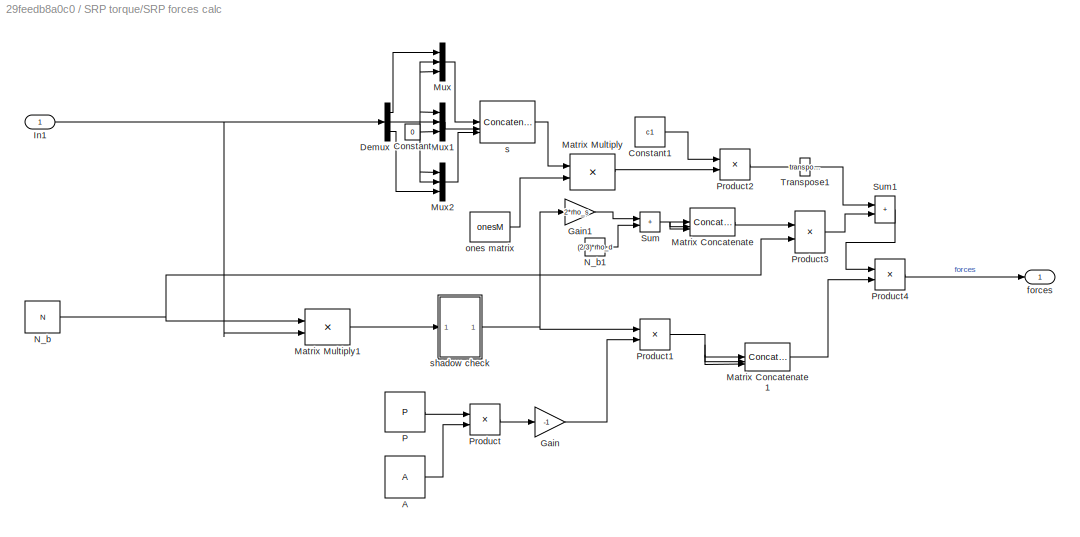
BLOCK [SubSystem] SRP torque/SRP forces calc
BLOCK [Constant] SRP torque/SRP forces calc/A
  Value = A
BLOCK [Constant] SRP torque/SRP forces calc/Constant
  Value = 0
BLOCK [Constant] SRP torque/SRP forces calc/Constant1
  Value = c1
BLOCK [Demux] SRP torque/SRP forces calc/Demux
  Outputs = 3
BLOCK [Gain] SRP torque/SRP forces calc/Gain
  Gain = -1
BLOCK [Gain] SRP torque/SRP forces calc/Gain1
  Gain = 2*rho_s
BLOCK [Inport] SRP torque/SRP forces calc/In1
BLOCK [Concatenate] SRP torque/SRP forces calc/Matrix Concatenate
  ConcatenateDimension = 2
  Mode = Multidimensional array
  NumInputs = 3
BLOCK [Concatenate] SRP torque/SRP forces calc/Matrix Concatenate1
  ConcatenateDimension = 2
  Mode = Multidimensional array
  NumInputs = 3
BLOCK [Product] SRP torque/SRP forces calc/Matrix Multiply
  Multiplication = Matrix(*)
BLOCK [Product] SRP torque/SRP forces calc/Matrix Multiply1
  Multiplication = Matrix(*)
BLOCK [Mux] SRP torque/SRP forces calc/Mux
  DisplayOption = bar
  Inputs = 3
BLOCK [Mux] SRP torque/SRP forces calc/Mux1
  DisplayOption = bar
  Inputs = 3
BLOCK [Mux] SRP torque/SRP forces calc/Mux2
  DisplayOption = bar
  Inputs = 3
BLOCK [Constant] SRP torque/SRP forces calc/N_b
  Value = N
BLOCK [Constant] SRP torque/SRP forces calc/N_b1
  Value = (2/3)*rho_d
BLOCK [Constant] SRP torque/SRP forces calc/P
  Value = P
BLOCK [Product] SRP torque/SRP forces calc/Product
BLOCK [Product] SRP torque/SRP forces calc/Product1
BLOCK [Product] SRP torque/SRP forces calc/Product2
BLOCK [Product] SRP torque/SRP forces calc/Product3
BLOCK [Product] SRP torque/SRP forces calc/Product4
BLOCK [Sum] SRP torque/SRP forces calc/Sum
  IconShape = rectangular
BLOCK [Sum] SRP torque/SRP forces calc/Sum1
  IconShape = rectangular
BLOCK [Math] SRP torque/SRP forces calc/Transpose1
  Operator = transpose
BLOCK [Outport] SRP torque/SRP forces calc/forces
BLOCK [Constant] SRP torque/SRP forces calc/ones matrix
  Value = onesM
BLOCK [Concatenate] SRP torque/SRP forces calc/s 
  ConcatenateDimension = 2
  Mode = Multidimensional array
  NumInputs = 3
BLOCK [SubSystem] SRP torque/SRP forces calc/shadow check
BLOCK [Reference] SRP torque/SRP forces calc/shadow check/Compare To Constant  REF=simulink/Logic and Bit
Operations/Compare
To Constant
  SourceBlock = simulink/Logic and Bit\nOperations/Compare\nTo Constant
  SourceType = Compare To Constant
BLOCK [Inport] SRP torque/SRP forces calc/shadow check/In1
BLOCK [Outport] SRP torque/SRP forces calc/shadow check/Out1
BLOCK [Product] SRP torque/SRP forces calc/shadow check/Product5
BLOCK [Inport] SRP torque/S_B
BLOCK [ToWorkspace] SRP torque/To Workspace
  FixptAsFi = on
  MaxDataPoints = inf
  SampleTime = -1
  SaveFormat = Timeseries
  VariableName = SRP_F
BLOCK [ToWorkspace] SRP torque/To Workspace1
  FixptAsFi = on
  MaxDataPoints = inf
  SampleTime = -1
  SaveFormat = Timeseries
  VariableName = SRP_T
BLOCK [SubSystem] SRP torque/equivalent force system
BLOCK [Constant] SRP torque/equivalent force system/Constant
  Value = r_Fskew
BLOCK [Constant] SRP torque/equivalent force system/Constant1
  Value = onesV
BLOCK [Display] SRP torque/equivalent force system/Display
  Decimation = 1
BLOCK [Display] SRP torque/equivalent force system/Display1
  Decimation = 1
BLOCK [Display] SRP torque/equivalent force system/Display2
  Decimation = 1
BLOCK [Inport] SRP torque/equivalent force system/Forces
BLOCK [Product] SRP torque/equivalent force system/Matrix Multiply
  Multiplication = Matrix(*)
BLOCK [Product] SRP torque/equivalent force system/Matrix Multiply1
  Multiplication = Matrix(*)
BLOCK [Product] SRP torque/equivalent force system/Matrix Multiply2
  Multiplication = Matrix(*)
BLOCK [Reshape] SRP torque/equivalent force system/Reshape
  OutputDimensionality = Column vector (2-D)
BLOCK [Reshape] SRP torque/equivalent force system/Reshape1
  OutputDimensionality = Derive from reference input port
BLOCK [Outport] SRP torque/equivalent force system/Resultant
  Port = 2
BLOCK [Outport] SRP torque/equivalent force system/Torque
BLOCK [Math] SRP torque/equivalent force system/Transpose
  Operator = transpose
BLOCK [Scope] Scope2
  Floating = off
  NumInputPorts = 1
  ScopeSpecificationString = Simulink.scopes.TimeScopeBlockCfg('CurrentConfiguration', extmgr.ConfigurationSet(extmgr.Configuration('Core','General UI',true),extmgr.Configuration('Core','Source UI',true),extmgr.Configuration('Sources','WiredSimulink',true,'DataLoggingVariableName','ScopeData2'),extmgr.Configuration('Visuals','Time Domain',true,'SerializedDisplays',{struct('MinYLimReal','-1.0889','MaxYLimReal','0.53967','YLabe...<+1376ch>
BLOCK [Scope] Scope3
  Floating = off
  NumInputPorts = 1
  ScopeSpecificationString = Simulink.scopes.TimeScopeBlockCfg('CurrentConfiguration', extmgr.ConfigurationSet(extmgr.Configuration('Core','General UI',true),extmgr.Configuration('Core','Source UI',true),extmgr.Configuration('Sources','WiredSimulink',true,'DataLoggingVariableName','ScopeData3'),extmgr.Configuration('Visuals','Time Domain',true,'SerializedDisplays',{struct('MinYLimReal','-32952.00642','MaxYLimReal','33192.2877...<+1422ch>
BLOCK [Sum] Sum2
  IconShape = rectangular
BLOCK [Sum] Sum3
  IconShape = rectangular
BLOCK [Terminator] Terminator
  Commented = on
BLOCK [Terminator] Terminator1
BLOCK [Terminator] Terminator2
BLOCK [ToWorkspace] To Workspace
  Commented = on
  FixptAsFi = on
  MaxDataPoints = inf
  SampleTime = -1
  SaveFormat = Timeseries
  VariableName = simout
BLOCK [ToWorkspace] To Workspace1
  Commented = on
  FixptAsFi = on
  MaxDataPoints = inf
  SampleTime = -1
  SaveFormat = Timeseries
  VariableName = s
BLOCK [UniformRandomNumber] Uniform Random Number
BLOCK [UniformRandomNumber] Uniform Random Number1
BLOCK [UniformRandomNumber] Uniform Random Number2
BLOCK [UniformRandomNumber] Uniform Random Number3
  Maximum = tan(deg2rad(0.1))
  Minimum = 0
BLOCK [UniformRandomNumber] Uniform Random Number4
BLOCK [UniformRandomNumber] Uniform Random Number5
BLOCK [UniformRandomNumber] Uniform Random Number6
BLOCK [UniformRandomNumber] Uniform Random Number7
  Maximum = tan(deg2rad(0.5))
  Minimum = 0
BLOCK [Concatenate] Vector Concatenate
  NumInputs = 3
BLOCK [Concatenate] Vector Concatenate2
  NumInputs = 3
BLOCK [ZeroOrderHold] Zero-Order Hold
  SampleTime = 1/30
BLOCK [ZeroOrderHold] Zero-Order Hold1
  SampleTime = 1/30
BLOCK [SubSystem] h
  Commented = on
BLOCK [Inport] h/A
BLOCK [Constant] h/Constant
  Value = I
BLOCK [Product] h/Product1
  Multiplication = Matrix(*)
BLOCK [Product] h/Product2
  Multiplication = Matrix(*)
BLOCK [Math] h/Transpose
  Operator = transpose
BLOCK [Outport] h/h
BLOCK [Inport] h/w
  Port = 2
BLOCK [SubSystem] kep_dyn
BLOCK [Constant] kep_dyn/Constant
  Value = 0
BLOCK [Constant] kep_dyn/Constant1
  NameLocation = left
  Value = e
BLOCK [Constant] kep_dyn/Constant2
  Value = A_313
BLOCK [Trigonometry] kep_dyn/Cos
  Operator = cos
BLOCK [Integrator] kep_dyn/Integrator
BLOCK [Product] kep_dyn/Matrix Multiply
  Multiplication = Matrix(*)
BLOCK [Product] kep_dyn/Product2
BLOCK [Outport] kep_dyn/R_N
  Port = 2
BLOCK [Scope] kep_dyn/Scope
  Floating = off
  NumInputPorts = 1
  ScopeSpecificationString = Simulink.scopes.TimeScopeBlockCfg('CurrentConfiguration', extmgr.ConfigurationSet(extmgr.Configuration('Core','General UI',true),extmgr.Configuration('Core','Source UI',true),extmgr.Configuration('Sources','WiredSimulink',true,'DataLoggingVariableName','ScopeData8'),extmgr.Configuration('Visuals','Time Domain',true,'SerializedDisplays',{struct('MinYLimReal','16577.8583','MaxYLimReal','36577.8583',...<+1387ch>
BLOCK [Trigonometry] kep_dyn/Sin
BLOCK [Concatenate] kep_dyn/Vector Concatenate
  NumInputs = 3
BLOCK [SubSystem] kep_dyn/r_norm
BLOCK [Constant] kep_dyn/r_norm/Constant
  Value = a
BLOCK [Constant] kep_dyn/r_norm/Constant1
BLOCK [Trigonometry] kep_dyn/r_norm/Cos
  Operator = cos
BLOCK [Product] kep_dyn/r_norm/Divide
  Inputs = */
BLOCK [Math] kep_dyn/r_norm/Power
  Operator = magnitude^2
BLOCK [Product] kep_dyn/r_norm/Product
BLOCK [Product] kep_dyn/r_norm/Product1
BLOCK [Sum] kep_dyn/r_norm/Sum
  IconShape = rectangular
  Inputs = +-
BLOCK [Sum] kep_dyn/r_norm/Sum2
  IconShape = rectangular
BLOCK [Inport] kep_dyn/r_norm/e
BLOCK [Outport] kep_dyn/r_norm/r
BLOCK [Inport] kep_dyn/r_norm/theta
  Port = 2
BLOCK [Outport] kep_dyn/theta
BLOCK [SubSystem] kep_dyn/theta integration
  PortSchema = {"entries":[{"content":{"sides":[{"content":{"connectorIds":["In1"]},"type":"ConnectorPlacement.EquallySpacedRectSide","uuid":"3f1b1ec9-07ed-4eb1-9e41-630dc5613e97"},{"content":{"connectorIds":["Out1","In2"],"side":"RIGHT"},"type":"ConnectorPlacement.EquallySpacedRectSide","uuid":"22d0f7bc-714c-4365-a26c-07047ff4be14"},{"content":{"side":"TOP"},"type":"ConnectorPlacement.EquallySpacedRectSide","uu...<+228ch>
BLOCK [Constant] kep_dyn/theta integration/Constant
  Value = n
BLOCK [Constant] kep_dyn/theta integration/Constant2
BLOCK [Constant] kep_dyn/theta integration/Constant3
  Value = 3/2
BLOCK [Trigonometry] kep_dyn/theta integration/Cos
  Operator = cos
BLOCK [Product] kep_dyn/theta integration/Divide
  Inputs = */
BLOCK [Math] kep_dyn/theta integration/Math Function
  Operator = square
BLOCK [Math] kep_dyn/theta integration/Math Function1
  Operator = square
BLOCK [Math] kep_dyn/theta integration/Math Function2
  Operator = pow
BLOCK [Product] kep_dyn/theta integration/Product
BLOCK [Product] kep_dyn/theta integration/Product1
BLOCK [Sum] kep_dyn/theta integration/Sum
  IconShape = rectangular
BLOCK [Sum] kep_dyn/theta integration/Sum1
  IconShape = rectangular
  Inputs = +-
BLOCK [Inport] kep_dyn/theta integration/e
  Port = 2
BLOCK [Inport] kep_dyn/theta integration/theta
  NameLocation = left
BLOCK [Outport] kep_dyn/theta integration/theta_dot
BLOCK [SubSystem] relative kinematics
BLOCK [Outport] relative kinematics/A_BL
BLOCK [Inport] relative kinematics/A_BN
BLOCK [Outport] relative kinematics/A_LN
  Port = 2
BLOCK [Constant] relative kinematics/Constant3
BLOCK [Constant] relative kinematics/Constant4
  Value = 0
BLOCK [Constant] relative kinematics/Constant5
BLOCK [Constant] relative kinematics/Constant6
  Value = 0
BLOCK [Constant] relative kinematics/Constant7
  Value = i
BLOCK [Trigonometry] relative kinematics/Cos2
  Operator = cos
BLOCK [Trigonometry] relative kinematics/Cos3
BLOCK [Trigonometry] relative kinematics/Cos4
  Operator = cos
BLOCK [Trigonometry] relative kinematics/Cos5
BLOCK [Gain] relative kinematics/Gain
  Gain = -1
BLOCK [Gain] relative kinematics/Gain2
  Gain = -1
BLOCK [Concatenate] relative kinematics/Matrix Concatenate1
  ConcatenateDimension = 2
  Mode = Multidimensional array
  NumInputs = 3
BLOCK [Concatenate] relative kinematics/Matrix Concatenate2
  ConcatenateDimension = 2
  Mode = Multidimensional array
  NumInputs = 3
BLOCK [Product] relative kinematics/Matrix Multiply1
  Multiplication = Matrix(*)
BLOCK [Product] relative kinematics/Matrix Multiply2
  Multiplication = Matrix(*)
BLOCK [Math] relative kinematics/Transpose1
  Operator = transpose
BLOCK [Concatenate] relative kinematics/Vector Concatenate
  NumInputs = 3
BLOCK [Concatenate] relative kinematics/Vector Concatenate1
  NumInputs = 3
BLOCK [Concatenate] relative kinematics/Vector Concatenate2
  NumInputs = 3
BLOCK [Concatenate] relative kinematics/Vector Concatenate3
  NumInputs = 3
BLOCK [Concatenate] relative kinematics/Vector Concatenate4
  NumInputs = 3
BLOCK [Concatenate] relative kinematics/Vector Concatenate5
  NumInputs = 3
BLOCK [Inport] relative kinematics/theta
  Port = 2
BLOCK [SubSystem] sun direction 
  Commented = on
  NameLocation = top
BLOCK [Inport] sun direction /A_BN
BLOCK [Clock] sun direction /Clock1
BLOCK [Constant] sun direction /Constant
  Value = n_sun
BLOCK [Constant] sun direction /Constant1
  Value = eps
BLOCK [Trigonometry] sun direction /Cos1
  Operator = cos
BLOCK [Trigonometry] sun direction /Cos2
  Operator = cos
BLOCK [Display] sun direction /Display
  Decimation = 1
BLOCK [Product] sun direction /Matrix Multiply
  Multiplication = Matrix(*)
BLOCK [Reference] sun direction /Normalization  REF=dspmathops/Normalization
  SourceBlock = dspmathops/Normalization
  SourceType = Normalization
BLOCK [Product] sun direction /Product
BLOCK [Product] sun direction /Product1
BLOCK [Product] sun direction /Product2
BLOCK [Outport] sun direction /S_b
BLOCK [Trigonometry] sun direction /Sin
BLOCK [Trigonometry] sun direction /Sin1
BLOCK [Concatenate] sun direction /Vector Concatenate
  NumInputs = 3
ANNOTATION (root): ENVIRONMENT
ANNOTATION (root): Earth Horizon Sensor2
ANNOTATION (root): Magnetometer
LINE Attitude Determination  /Matrix Multiply:1 -> Attitude Determination  /A_bn_sens:1
LINE Attitude Determination  /S/Cross Product1:1 -> Attitude Determination  /S/Matrix Concatenate:3
LINE Attitude Determination  /S/Cross Product:1 -> Attitude Determination  /S/Normalize Vector:1
LINE Attitude Determination  /S/Matrix Concatenate:1 -> Attitude Determination  /S/S:1
NET Attitude Determination  /S/Normalize Vector:1 -> Attitude Determination  /S/Cross Product1:2, Attitude Determination  /S/Matrix Concatenate:2
NET Attitude Determination  /S/p:1 -> Attitude Determination  /S/Cross Product1:1, Attitude Determination  /S/Cross Product:1, Attitude Determination  /S/Matrix Concatenate:1
LINE Attitude Determination  /S/q:1 -> Attitude Determination  /S/Cross Product:2
LINE Attitude Determination  /S:1 -> Attitude Determination  /Matrix Multiply:1
LINE Attitude Determination  /Transpose:1 -> Attitude Determination  /Matrix Multiply:2
LINE Attitude Determination  /V/Cross Product1:1 -> Attitude Determination  /V/Matrix Concatenate:3
LINE Attitude Determination  /V/Cross Product:1 -> Attitude Determination  /V/Normalize Vector:1
LINE Attitude Determination  /V/Matrix Concatenate:1 -> Attitude Determination  /V/V:1
NET Attitude Determination  /V/Normalize Vector:1 -> Attitude Determination  /V/Cross Product1:2, Attitude Determination  /V/Matrix Concatenate:2
NET Attitude Determination  /V/a:1 -> Attitude Determination  /V/Cross Product1:1, Attitude Determination  /V/Cross Product:1, Attitude Determination  /V/Matrix Concatenate:1
LINE Attitude Determination  /V/b:1 -> Attitude Determination  /V/Cross Product:2
LINE Attitude Determination  /V:1 -> Attitude Determination  /Transpose:1
LINE Attitude Determination  /a:1 -> Attitude Determination  /V:2
LINE Attitude Determination  /b:1 -> Attitude Determination  /V:1
LINE Attitude Determination  /p:1 -> Attitude Determination  /S:2
LINE Attitude Determination  /q:1 -> Attitude Determination  /S:1
LINE Attitude Determination  :1 -> Display1:1
LINE Cross Product1:1 -> Normalize Vector1:1
LINE Cross Product:1 -> Normalize Vector3:1
LINE Dynamics/Constant1:1 -> Dynamics/Product1:1
LINE Dynamics/Constant:1 -> Dynamics/Product:1
LINE Dynamics/Cross Product:1 -> Dynamics/Product1:2
NET Dynamics/Integrator:1 -> Dynamics/Cross Product:1, Dynamics/Product:2, Dynamics/To Workspace:1, Dynamics/w:1
LINE Dynamics/Product1:1 -> Dynamics/Integrator:1
LINE Dynamics/Product:1 -> Dynamics/Cross Product:2
LINE Dynamics:1 -> Kinematics:1
NET From1:1 -> Magnetic Field Model:2, Scope3:1
LINE From2:1 -> Normalize Vector5:1
LINE From3:1 -> Display2:1
NET From:1 -> Magnetic Field Model:1, Matrix Multiply:1
NET Kinematics/Kinematics 312/A - s_312/A:1 -> Kinematics/Kinematics 312/A - s_312/Selector1:1, Kinematics/Kinematics 312/A - s_312/Selector2:1, Kinematics/Kinematics 312/A - s_312/Selector3:1, Kinematics/Kinematics 312/A - s_312/Selector4:1, Kinematics/Kinematics 312/A - s_312/Selector:1
LINE Kinematics/Kinematics 312/A - s_312/Asin:1 -> Kinematics/Kinematics 312/A - s_312/Mux:2
LINE Kinematics/Kinematics 312/A - s_312/Atan1:1 -> Kinematics/Kinematics 312/A - s_312/Mux:3
LINE Kinematics/Kinematics 312/A - s_312/Atan2:1 -> Kinematics/Kinematics 312/A - s_312/Mux:1
LINE Kinematics/Kinematics 312/A - s_312/Gain1:1 -> Kinematics/Kinematics 312/A - s_312/Atan1:1
LINE Kinematics/Kinematics 312/A - s_312/Gain:1 -> Kinematics/Kinematics 312/A - s_312/Atan2:1
LINE Kinematics/Kinematics 312/A - s_312/Mux:1 -> Kinematics/Kinematics 312/A - s_312/s:1
LINE Kinematics/Kinematics 312/A - s_312/Selector1:1 -> Kinematics/Kinematics 312/A - s_312/Atan2:2
LINE Kinematics/Kinematics 312/A - s_312/Selector2:1 -> Kinematics/Kinematics 312/A - s_312/Asin:1
LINE Kinematics/Kinematics 312/A - s_312/Selector3:1 -> Kinematics/Kinematics 312/A - s_312/Gain1:1
LINE Kinematics/Kinematics 312/A - s_312/Selector4:1 -> Kinematics/Kinematics 312/A - s_312/Atan1:2
LINE Kinematics/Kinematics 312/A - s_312/Selector:1 -> Kinematics/Kinematics 312/A - s_312/Gain:1
LINE Kinematics/Kinematics 312/A - s_312:1 -> Kinematics/Kinematics 312/IC:1
LINE Kinematics/Kinematics 312/Euler angles/Cos:1 -> Kinematics/Kinematics 312/Euler angles/Divide:2
NET Kinematics/Kinematics 312/Euler angles/Demux1:2 -> Kinematics/Kinematics 312/Euler angles/Cos:1, Kinematics/Kinematics 312/Euler angles/Tan:1
NET Kinematics/Kinematics 312/Euler angles/Demux1:3 -> Kinematics/Kinematics 312/Euler angles/Subsystem1:3, Kinematics/Kinematics 312/Euler angles/Subsystem2:3, Kinematics/Kinematics 312/Euler angles/Subsystem:3
NET Kinematics/Kinematics 312/Euler angles/Demux:1 -> Kinematics/Kinematics 312/Euler angles/Gain1:1, Kinematics/Kinematics 312/Euler angles/Gain:1, Kinematics/Kinematics 312/Euler angles/Subsystem1:1
LINE Kinematics/Kinematics 312/Euler angles/Demux:2 -> Kinematics/Kinematics 312/Euler angles/Sum:1
NET Kinematics/Kinematics 312/Euler angles/Demux:3 -> Kinematics/Kinematics 312/Euler angles/Subsystem1:2, Kinematics/Kinematics 312/Euler angles/Subsystem2:1, Kinematics/Kinematics 312/Euler angles/Subsystem:1
LINE Kinematics/Kinematics 312/Euler angles/Divide:1 -> Kinematics/Kinematics 312/Euler angles/Mux:1
LINE Kinematics/Kinematics 312/Euler angles/Gain1:1 -> Kinematics/Kinematics 312/Euler angles/Subsystem2:2
LINE Kinematics/Kinematics 312/Euler angles/Gain:1 -> Kinematics/Kinematics 312/Euler angles/Subsystem:2
NET Kinematics/Kinematics 312/Euler angles/Integrator:1 -> Kinematics/Kinematics 312/Euler angles/Demux1:1, Kinematics/Kinematics 312/Euler angles/s:1
LINE Kinematics/Kinematics 312/Euler angles/Integrator:state -> Kinematics/Kinematics 312/Euler angles/Goto:1
LINE Kinematics/Kinematics 312/Euler angles/Mux:1 -> Kinematics/Kinematics 312/Euler angles/Integrator:1
LINE Kinematics/Kinematics 312/Euler angles/Product:1 -> Kinematics/Kinematics 312/Euler angles/Sum:2
LINE Kinematics/Kinematics 312/Euler angles/Subsystem/Cos:1 -> Kinematics/Kinematics 312/Euler angles/Subsystem/Product:2
LINE Kinematics/Kinematics 312/Euler angles/Subsystem/In1:1 -> Kinematics/Kinematics 312/Euler angles/Subsystem/Product:1
LINE Kinematics/Kinematics 312/Euler angles/Subsystem/In2:1 -> Kinematics/Kinematics 312/Euler angles/Subsystem/Product1:2
NET Kinematics/Kinematics 312/Euler angles/Subsystem/In3:1 -> Kinematics/Kinematics 312/Euler angles/Subsystem/Cos:1, Kinematics/Kinematics 312/Euler angles/Subsystem/Sin:1
LINE Kinematics/Kinematics 312/Euler angles/Subsystem/Product1:1 -> Kinematics/Kinematics 312/Euler angles/Subsystem/Sum:2
LINE Kinematics/Kinematics 312/Euler angles/Subsystem/Product:1 -> Kinematics/Kinematics 312/Euler angles/Subsystem/Sum:1
LINE Kinematics/Kinematics 312/Euler angles/Subsystem/Sin:1 -> Kinematics/Kinematics 312/Euler angles/Subsystem/Product1:1
LINE Kinematics/Kinematics 312/Euler angles/Subsystem/Sum:1 -> Kinematics/Kinematics 312/Euler angles/Subsystem/Out1:1
LINE Kinematics/Kinematics 312/Euler angles/Subsystem1/Cos:1 -> Kinematics/Kinematics 312/Euler angles/Subsystem1/Product:2
LINE Kinematics/Kinematics 312/Euler angles/Subsystem1/In1:1 -> Kinematics/Kinematics 312/Euler angles/Subsystem1/Product:1
LINE Kinematics/Kinematics 312/Euler angles/Subsystem1/In2:1 -> Kinematics/Kinematics 312/Euler angles/Subsystem1/Product1:2
NET Kinematics/Kinematics 312/Euler angles/Subsystem1/In3:1 -> Kinematics/Kinematics 312/Euler angles/Subsystem1/Cos:1, Kinematics/Kinematics 312/Euler angles/Subsystem1/Sin:1
LINE Kinematics/Kinematics 312/Euler angles/Subsystem1/Product1:1 -> Kinematics/Kinematics 312/Euler angles/Subsystem1/Sum:2
LINE Kinematics/Kinematics 312/Euler angles/Subsystem1/Product:1 -> Kinematics/Kinematics 312/Euler angles/Subsystem1/Sum:1
LINE Kinematics/Kinematics 312/Euler angles/Subsystem1/Sin:1 -> Kinematics/Kinematics 312/Euler angles/Subsystem1/Product1:1
LINE Kinematics/Kinematics 312/Euler angles/Subsystem1/Sum:1 -> Kinematics/Kinematics 312/Euler angles/Subsystem1/Out1:1
LINE Kinematics/Kinematics 312/Euler angles/Subsystem1:1 -> Kinematics/Kinematics 312/Euler angles/Mux:2
LINE Kinematics/Kinematics 312/Euler angles/Subsystem2/Cos:1 -> Kinematics/Kinematics 312/Euler angles/Subsystem2/Product:2
LINE Kinematics/Kinematics 312/Euler angles/Subsystem2/In1:1 -> Kinematics/Kinematics 312/Euler angles/Subsystem2/Product:1
LINE Kinematics/Kinematics 312/Euler angles/Subsystem2/In2:1 -> Kinematics/Kinematics 312/Euler angles/Subsystem2/Product1:2
NET Kinematics/Kinematics 312/Euler angles/Subsystem2/In3:1 -> Kinematics/Kinematics 312/Euler angles/Subsystem2/Cos:1, Kinematics/Kinematics 312/Euler angles/Subsystem2/Sin:1
LINE Kinematics/Kinematics 312/Euler angles/Subsystem2/Product1:1 -> Kinematics/Kinematics 312/Euler angles/Subsystem2/Sum:2
LINE Kinematics/Kinematics 312/Euler angles/Subsystem2/Product:1 -> Kinematics/Kinematics 312/Euler angles/Subsystem2/Sum:1
LINE Kinematics/Kinematics 312/Euler angles/Subsystem2/Sin:1 -> Kinematics/Kinematics 312/Euler angles/Subsystem2/Product1:1
LINE Kinematics/Kinematics 312/Euler angles/Subsystem2/Sum:1 -> Kinematics/Kinematics 312/Euler angles/Subsystem2/Out1:1
LINE Kinematics/Kinematics 312/Euler angles/Subsystem2:1 -> Kinematics/Kinematics 312/Euler angles/Product:2
LINE Kinematics/Kinematics 312/Euler angles/Subsystem:1 -> Kinematics/Kinematics 312/Euler angles/Divide:1
LINE Kinematics/Kinematics 312/Euler angles/Sum:1 -> Kinematics/Kinematics 312/Euler angles/Mux:3
LINE Kinematics/Kinematics 312/Euler angles/Tan:1 -> Kinematics/Kinematics 312/Euler angles/Product:1
LINE Kinematics/Kinematics 312/Euler angles/s0:1 -> Kinematics/Kinematics 312/Euler angles/Integrator:2
LINE Kinematics/Kinematics 312/Euler angles/w:1 -> Kinematics/Kinematics 312/Euler angles/Demux:1
LINE Kinematics/Kinematics 312/Euler angles:1 -> Kinematics/Kinematics 312/s_312 - A:1
LINE Kinematics/Kinematics 312/From:1 -> Kinematics/Kinematics 312/s_313 - A:1
LINE Kinematics/Kinematics 312/IC:1 -> Kinematics/Kinematics 312/Euler angles:2
LINE Kinematics/Kinematics 312/s_312 - A/Demux:1 -> Kinematics/Kinematics 312/s_312 - A/R3:1
LINE Kinematics/Kinematics 312/s_312 - A/Demux:2 -> Kinematics/Kinematics 312/s_312 - A/R1:1
LINE Kinematics/Kinematics 312/s_312 - A/Demux:3 -> Kinematics/Kinematics 312/s_312 - A/R2:1
LINE Kinematics/Kinematics 312/s_312 - A/Product:1 -> Kinematics/Kinematics 312/s_312 - A/A:1
NET Kinematics/Kinematics 312/s_312 - A/R1/Constant1:1 -> Kinematics/Kinematics 312/s_312 - A/R1/Vector Concatenate1:1, Kinematics/Kinematics 312/s_312 - A/R1/Vector Concatenate:1
LINE Kinematics/Kinematics 312/s_312 - A/R1/Constant:1 -> Kinematics/Kinematics 312/s_312 - A/R1/Matrix Concatenate:1
NET Kinematics/Kinematics 312/s_312 - A/R1/Cos:1 -> Kinematics/Kinematics 312/s_312 - A/R1/Vector Concatenate1:2, Kinematics/Kinematics 312/s_312 - A/R1/Vector Concatenate:3
LINE Kinematics/Kinematics 312/s_312 - A/R1/Gain:1 -> Kinematics/Kinematics 312/s_312 - A/R1/Vector Concatenate1:3
LINE Kinematics/Kinematics 312/s_312 - A/R1/Matrix Concatenate:1 -> Kinematics/Kinematics 312/s_312 - A/R1/R1:1
NET Kinematics/Kinematics 312/s_312 - A/R1/Sin:1 -> Kinematics/Kinematics 312/s_312 - A/R1/Gain:1, Kinematics/Kinematics 312/s_312 - A/R1/Vector Concatenate:2
LINE Kinematics/Kinematics 312/s_312 - A/R1/Vector Concatenate1:1 -> Kinematics/Kinematics 312/s_312 - A/R1/Matrix Concatenate:2
LINE Kinematics/Kinematics 312/s_312 - A/R1/Vector Concatenate:1 -> Kinematics/Kinematics 312/s_312 - A/R1/Matrix Concatenate:3
NET Kinematics/Kinematics 312/s_312 - A/R1/x:1 -> Kinematics/Kinematics 312/s_312 - A/R1/Cos:1, Kinematics/Kinematics 312/s_312 - A/R1/Sin:1
LINE Kinematics/Kinematics 312/s_312 - A/R1:1 -> Kinematics/Kinematics 312/s_312 - A/Product:2
NET Kinematics/Kinematics 312/s_312 - A/R2/Constant1:1 -> Kinematics/Kinematics 312/s_312 - A/R2/Vector Concatenate1:2, Kinematics/Kinematics 312/s_312 - A/R2/Vector Concatenate:2
LINE Kinematics/Kinematics 312/s_312 - A/R2/Constant:1 -> Kinematics/Kinematics 312/s_312 - A/R2/Matrix Concatenate:2
NET Kinematics/Kinematics 312/s_312 - A/R2/Cos:1 -> Kinematics/Kinematics 312/s_312 - A/R2/Vector Concatenate1:3, Kinematics/Kinematics 312/s_312 - A/R2/Vector Concatenate:1
LINE Kinematics/Kinematics 312/s_312 - A/R2/Gain:1 -> Kinematics/Kinematics 312/s_312 - A/R2/Vector Concatenate1:1
LINE Kinematics/Kinematics 312/s_312 - A/R2/Matrix Concatenate:1 -> Kinematics/Kinematics 312/s_312 - A/R2/R2:1
NET Kinematics/Kinematics 312/s_312 - A/R2/Sin:1 -> Kinematics/Kinematics 312/s_312 - A/R2/Gain:1, Kinematics/Kinematics 312/s_312 - A/R2/Vector Concatenate:3
LINE Kinematics/Kinematics 312/s_312 - A/R2/Vector Concatenate1:1 -> Kinematics/Kinematics 312/s_312 - A/R2/Matrix Concatenate:3
LINE Kinematics/Kinematics 312/s_312 - A/R2/Vector Concatenate:1 -> Kinematics/Kinematics 312/s_312 - A/R2/Matrix Concatenate:1
NET Kinematics/Kinematics 312/s_312 - A/R2/x:1 -> Kinematics/Kinematics 312/s_312 - A/R2/Cos:1, Kinematics/Kinematics 312/s_312 - A/R2/Sin:1
LINE Kinematics/Kinematics 312/s_312 - A/R2:1 -> Kinematics/Kinematics 312/s_312 - A/Product:1
NET Kinematics/Kinematics 312/s_312 - A/R3/Constant1:1 -> Kinematics/Kinematics 312/s_312 - A/R3/Vector Concatenate1:3, Kinematics/Kinematics 312/s_312 - A/R3/Vector Concatenate:3
LINE Kinematics/Kinematics 312/s_312 - A/R3/Constant:1 -> Kinematics/Kinematics 312/s_312 - A/R3/Matrix Concatenate:3
NET Kinematics/Kinematics 312/s_312 - A/R3/Cos:1 -> Kinematics/Kinematics 312/s_312 - A/R3/Vector Concatenate1:2, Kinematics/Kinematics 312/s_312 - A/R3/Vector Concatenate:1
LINE Kinematics/Kinematics 312/s_312 - A/R3/Gain:1 -> Kinematics/Kinematics 312/s_312 - A/R3/Vector Concatenate:2
LINE Kinematics/Kinematics 312/s_312 - A/R3/Matrix Concatenate:1 -> Kinematics/Kinematics 312/s_312 - A/R3/R3:1
NET Kinematics/Kinematics 312/s_312 - A/R3/Sin:1 -> Kinematics/Kinematics 312/s_312 - A/R3/Gain:1, Kinematics/Kinematics 312/s_312 - A/R3/Vector Concatenate1:1
LINE Kinematics/Kinematics 312/s_312 - A/R3/Vector Concatenate1:1 -> Kinematics/Kinematics 312/s_312 - A/R3/Matrix Concatenate:2
LINE Kinematics/Kinematics 312/s_312 - A/R3/Vector Concatenate:1 -> Kinematics/Kinematics 312/s_312 - A/R3/Matrix Concatenate:1
NET Kinematics/Kinematics 312/s_312 - A/R3/x:1 -> Kinematics/Kinematics 312/s_312 - A/R3/Cos:1, Kinematics/Kinematics 312/s_312 - A/R3/Sin:1
LINE Kinematics/Kinematics 312/s_312 - A/R3:1 -> Kinematics/Kinematics 312/s_312 - A/Product:3
LINE Kinematics/Kinematics 312/s_312 - A/s:1 -> Kinematics/Kinematics 312/s_312 - A/Demux:1
LINE Kinematics/Kinematics 312/s_312 - A:1 -> Kinematics/Kinematics 312/A:1
LINE Kinematics/Kinematics 312/s_313 - A/Demux:1 -> Kinematics/Kinematics 312/s_313 - A/R3_1:1
LINE Kinematics/Kinematics 312/s_313 - A/Demux:2 -> Kinematics/Kinematics 312/s_313 - A/R1:1
LINE Kinematics/Kinematics 312/s_313 - A/Demux:3 -> Kinematics/Kinematics 312/s_313 - A/R3_2:1
LINE Kinematics/Kinematics 312/s_313 - A/Product:1 -> Kinematics/Kinematics 312/s_313 - A/A:1
NET Kinematics/Kinematics 312/s_313 - A/R1/Constant1:1 -> Kinematics/Kinematics 312/s_313 - A/R1/Vector Concatenate1:1, Kinematics/Kinematics 312/s_313 - A/R1/Vector Concatenate:1
LINE Kinematics/Kinematics 312/s_313 - A/R1/Constant:1 -> Kinematics/Kinematics 312/s_313 - A/R1/Matrix Concatenate:1
NET Kinematics/Kinematics 312/s_313 - A/R1/Cos:1 -> Kinematics/Kinematics 312/s_313 - A/R1/Vector Concatenate1:2, Kinematics/Kinematics 312/s_313 - A/R1/Vector Concatenate:3
LINE Kinematics/Kinematics 312/s_313 - A/R1/Gain:1 -> Kinematics/Kinematics 312/s_313 - A/R1/Vector Concatenate1:3
LINE Kinematics/Kinematics 312/s_313 - A/R1/Matrix Concatenate:1 -> Kinematics/Kinematics 312/s_313 - A/R1/R1:1
NET Kinematics/Kinematics 312/s_313 - A/R1/Sin:1 -> Kinematics/Kinematics 312/s_313 - A/R1/Gain:1, Kinematics/Kinematics 312/s_313 - A/R1/Vector Concatenate:2
LINE Kinematics/Kinematics 312/s_313 - A/R1/Vector Concatenate1:1 -> Kinematics/Kinematics 312/s_313 - A/R1/Matrix Concatenate:2
LINE Kinematics/Kinematics 312/s_313 - A/R1/Vector Concatenate:1 -> Kinematics/Kinematics 312/s_313 - A/R1/Matrix Concatenate:3
NET Kinematics/Kinematics 312/s_313 - A/R1/x:1 -> Kinematics/Kinematics 312/s_313 - A/R1/Cos:1, Kinematics/Kinematics 312/s_313 - A/R1/Sin:1
LINE Kinematics/Kinematics 312/s_313 - A/R1:1 -> Kinematics/Kinematics 312/s_313 - A/Product:2
NET Kinematics/Kinematics 312/s_313 - A/R3_1/Constant1:1 -> Kinematics/Kinematics 312/s_313 - A/R3_1/Vector Concatenate1:3, Kinematics/Kinematics 312/s_313 - A/R3_1/Vector Concatenate:3
LINE Kinematics/Kinematics 312/s_313 - A/R3_1/Constant:1 -> Kinematics/Kinematics 312/s_313 - A/R3_1/Matrix Concatenate:3
NET Kinematics/Kinematics 312/s_313 - A/R3_1/Cos:1 -> Kinematics/Kinematics 312/s_313 - A/R3_1/Vector Concatenate1:2, Kinematics/Kinematics 312/s_313 - A/R3_1/Vector Concatenate:1
LINE Kinematics/Kinematics 312/s_313 - A/R3_1/Gain:1 -> Kinematics/Kinematics 312/s_313 - A/R3_1/Vector Concatenate:2
LINE Kinematics/Kinematics 312/s_313 - A/R3_1/Matrix Concatenate:1 -> Kinematics/Kinematics 312/s_313 - A/R3_1/R3:1
NET Kinematics/Kinematics 312/s_313 - A/R3_1/Sin:1 -> Kinematics/Kinematics 312/s_313 - A/R3_1/Gain:1, Kinematics/Kinematics 312/s_313 - A/R3_1/Vector Concatenate1:1
LINE Kinematics/Kinematics 312/s_313 - A/R3_1/Vector Concatenate1:1 -> Kinematics/Kinematics 312/s_313 - A/R3_1/Matrix Concatenate:2
LINE Kinematics/Kinematics 312/s_313 - A/R3_1/Vector Concatenate:1 -> Kinematics/Kinematics 312/s_313 - A/R3_1/Matrix Concatenate:1
NET Kinematics/Kinematics 312/s_313 - A/R3_1/x:1 -> Kinematics/Kinematics 312/s_313 - A/R3_1/Cos:1, Kinematics/Kinematics 312/s_313 - A/R3_1/Sin:1
LINE Kinematics/Kinematics 312/s_313 - A/R3_1:1 -> Kinematics/Kinematics 312/s_313 - A/Product:3
NET Kinematics/Kinematics 312/s_313 - A/R3_2/Constant1:1 -> Kinematics/Kinematics 312/s_313 - A/R3_2/Vector Concatenate1:3, Kinematics/Kinematics 312/s_313 - A/R3_2/Vector Concatenate:3
LINE Kinematics/Kinematics 312/s_313 - A/R3_2/Constant:1 -> Kinematics/Kinematics 312/s_313 - A/R3_2/Matrix Concatenate:3
NET Kinematics/Kinematics 312/s_313 - A/R3_2/Cos:1 -> Kinematics/Kinematics 312/s_313 - A/R3_2/Vector Concatenate1:2, Kinematics/Kinematics 312/s_313 - A/R3_2/Vector Concatenate:1
LINE Kinematics/Kinematics 312/s_313 - A/R3_2/Gain:1 -> Kinematics/Kinematics 312/s_313 - A/R3_2/Vector Concatenate:2
LINE Kinematics/Kinematics 312/s_313 - A/R3_2/Matrix Concatenate:1 -> Kinematics/Kinematics 312/s_313 - A/R3_2/R3:1
NET Kinematics/Kinematics 312/s_313 - A/R3_2/Sin:1 -> Kinematics/Kinematics 312/s_313 - A/R3_2/Gain:1, Kinematics/Kinematics 312/s_313 - A/R3_2/Vector Concatenate1:1
LINE Kinematics/Kinematics 312/s_313 - A/R3_2/Vector Concatenate1:1 -> Kinematics/Kinematics 312/s_313 - A/R3_2/Matrix Concatenate:2
LINE Kinematics/Kinematics 312/s_313 - A/R3_2/Vector Concatenate:1 -> Kinematics/Kinematics 312/s_313 - A/R3_2/Matrix Concatenate:1
NET Kinematics/Kinematics 312/s_313 - A/R3_2/x:1 -> Kinematics/Kinematics 312/s_313 - A/R3_2/Cos:1, Kinematics/Kinematics 312/s_313 - A/R3_2/Sin:1
LINE Kinematics/Kinematics 312/s_313 - A/R3_2:1 -> Kinematics/Kinematics 312/s_313 - A/Product:1
LINE Kinematics/Kinematics 312/s_313 - A/s:1 -> Kinematics/Kinematics 312/s_313 - A/Demux:1
LINE Kinematics/Kinematics 312/s_313 - A:1 -> Kinematics/Kinematics 312/A - s_312:1
LINE Kinematics/Kinematics 312/w:1 -> Kinematics/Kinematics 312/Euler angles:1
LINE Kinematics/Kinematics 312:1 -> Kinematics/Merge:1
NET Kinematics/Kinematics 313/A - s_313/A:1 -> Kinematics/Kinematics 313/A - s_313/Selector1:1, Kinematics/Kinematics 313/A - s_313/Selector2:1, Kinematics/Kinematics 313/A - s_313/Selector3:1, Kinematics/Kinematics 313/A - s_313/Selector4:1, Kinematics/Kinematics 313/A - s_313/Selector:1
LINE Kinematics/Kinematics 313/A - s_313/Acos:1 -> Kinematics/Kinematics 313/A - s_313/Mux:2
LINE Kinematics/Kinematics 313/A - s_313/Atan1:1 -> Kinematics/Kinematics 313/A - s_313/Mux:3
LINE Kinematics/Kinematics 313/A - s_313/Atan2:1 -> Kinematics/Kinematics 313/A - s_313/Mux:1
LINE Kinematics/Kinematics 313/A - s_313/Gain:1 -> Kinematics/Kinematics 313/A - s_313/Atan2:2
LINE Kinematics/Kinematics 313/A - s_313/Mux:1 -> Kinematics/Kinematics 313/A - s_313/s:1
LINE Kinematics/Kinematics 313/A - s_313/Selector1:1 -> Kinematics/Kinematics 313/A - s_313/Gain:1
LINE Kinematics/Kinematics 313/A - s_313/Selector2:1 -> Kinematics/Kinematics 313/A - s_313/Acos:1
LINE Kinematics/Kinematics 313/A - s_313/Selector3:1 -> Kinematics/Kinematics 313/A - s_313/Atan1:1
LINE Kinematics/Kinematics 313/A - s_313/Selector4:1 -> Kinematics/Kinematics 313/A - s_313/Atan1:2
LINE Kinematics/Kinematics 313/A - s_313/Selector:1 -> Kinematics/Kinematics 313/A - s_313/Atan2:1
LINE Kinematics/Kinematics 313/A - s_313:1 -> Kinematics/Kinematics 313/Euler angles:2
NET Kinematics/Kinematics 313/Euler angles/Demux1:2 -> Kinematics/Kinematics 313/Euler angles/Sin:1, Kinematics/Kinematics 313/Euler angles/Tan:1
NET Kinematics/Kinematics 313/Euler angles/Demux1:3 -> Kinematics/Kinematics 313/Euler angles/Subsystem1:3, Kinematics/Kinematics 313/Euler angles/Subsystem2:3, Kinematics/Kinematics 313/Euler angles/Subsystem:3
NET Kinematics/Kinematics 313/Euler angles/Demux:1 -> Kinematics/Kinematics 313/Euler angles/Subsystem1:1, Kinematics/Kinematics 313/Euler angles/Subsystem2:2, Kinematics/Kinematics 313/Euler angles/Subsystem:2
NET Kinematics/Kinematics 313/Euler angles/Demux:2 -> Kinematics/Kinematics 313/Euler angles/Gain:1, Kinematics/Kinematics 313/Euler angles/Subsystem2:1, Kinematics/Kinematics 313/Euler angles/Subsystem:1
LINE Kinematics/Kinematics 313/Euler angles/Demux:3 -> Kinematics/Kinematics 313/Euler angles/Sum:1
LINE Kinematics/Kinematics 313/Euler angles/Divide:1 -> Kinematics/Kinematics 313/Euler angles/Mux:1
LINE Kinematics/Kinematics 313/Euler angles/Gain:1 -> Kinematics/Kinematics 313/Euler angles/Subsystem1:2
NET Kinematics/Kinematics 313/Euler angles/Integrator:1 -> Kinematics/Kinematics 313/Euler angles/Demux1:1, Kinematics/Kinematics 313/Euler angles/s:1
LINE Kinematics/Kinematics 313/Euler angles/Integrator:state -> Kinematics/Kinematics 313/Euler angles/Goto:1
LINE Kinematics/Kinematics 313/Euler angles/Mux:1 -> Kinematics/Kinematics 313/Euler angles/Integrator:1
LINE Kinematics/Kinematics 313/Euler angles/Product:1 -> Kinematics/Kinematics 313/Euler angles/Sum:2
LINE Kinematics/Kinematics 313/Euler angles/Sin:1 -> Kinematics/Kinematics 313/Euler angles/Divide:2
LINE Kinematics/Kinematics 313/Euler angles/Subsystem/Cos:1 -> Kinematics/Kinematics 313/Euler angles/Subsystem/Product:2
LINE Kinematics/Kinematics 313/Euler angles/Subsystem/In1:1 -> Kinematics/Kinematics 313/Euler angles/Subsystem/Product:1
LINE Kinematics/Kinematics 313/Euler angles/Subsystem/In2:1 -> Kinematics/Kinematics 313/Euler angles/Subsystem/Product1:2
NET Kinematics/Kinematics 313/Euler angles/Subsystem/In3:1 -> Kinematics/Kinematics 313/Euler angles/Subsystem/Cos:1, Kinematics/Kinematics 313/Euler angles/Subsystem/Sin:1
LINE Kinematics/Kinematics 313/Euler angles/Subsystem/Product1:1 -> Kinematics/Kinematics 313/Euler angles/Subsystem/Sum:2
LINE Kinematics/Kinematics 313/Euler angles/Subsystem/Product:1 -> Kinematics/Kinematics 313/Euler angles/Subsystem/Sum:1
LINE Kinematics/Kinematics 313/Euler angles/Subsystem/Sin:1 -> Kinematics/Kinematics 313/Euler angles/Subsystem/Product1:1
LINE Kinematics/Kinematics 313/Euler angles/Subsystem/Sum:1 -> Kinematics/Kinematics 313/Euler angles/Subsystem/Out1:1
LINE Kinematics/Kinematics 313/Euler angles/Subsystem1/Cos:1 -> Kinematics/Kinematics 313/Euler angles/Subsystem1/Product:2
LINE Kinematics/Kinematics 313/Euler angles/Subsystem1/In1:1 -> Kinematics/Kinematics 313/Euler angles/Subsystem1/Product:1
LINE Kinematics/Kinematics 313/Euler angles/Subsystem1/In2:1 -> Kinematics/Kinematics 313/Euler angles/Subsystem1/Product1:2
NET Kinematics/Kinematics 313/Euler angles/Subsystem1/In3:1 -> Kinematics/Kinematics 313/Euler angles/Subsystem1/Cos:1, Kinematics/Kinematics 313/Euler angles/Subsystem1/Sin:1
LINE Kinematics/Kinematics 313/Euler angles/Subsystem1/Product1:1 -> Kinematics/Kinematics 313/Euler angles/Subsystem1/Sum:2
LINE Kinematics/Kinematics 313/Euler angles/Subsystem1/Product:1 -> Kinematics/Kinematics 313/Euler angles/Subsystem1/Sum:1
LINE Kinematics/Kinematics 313/Euler angles/Subsystem1/Sin:1 -> Kinematics/Kinematics 313/Euler angles/Subsystem1/Product1:1
LINE Kinematics/Kinematics 313/Euler angles/Subsystem1/Sum:1 -> Kinematics/Kinematics 313/Euler angles/Subsystem1/Out1:1
LINE Kinematics/Kinematics 313/Euler angles/Subsystem1:1 -> Kinematics/Kinematics 313/Euler angles/Mux:2
LINE Kinematics/Kinematics 313/Euler angles/Subsystem2/Cos:1 -> Kinematics/Kinematics 313/Euler angles/Subsystem2/Product:2
LINE Kinematics/Kinematics 313/Euler angles/Subsystem2/In1:1 -> Kinematics/Kinematics 313/Euler angles/Subsystem2/Product:1
LINE Kinematics/Kinematics 313/Euler angles/Subsystem2/In2:1 -> Kinematics/Kinematics 313/Euler angles/Subsystem2/Product1:2
NET Kinematics/Kinematics 313/Euler angles/Subsystem2/In3:1 -> Kinematics/Kinematics 313/Euler angles/Subsystem2/Cos:1, Kinematics/Kinematics 313/Euler angles/Subsystem2/Sin:1
LINE Kinematics/Kinematics 313/Euler angles/Subsystem2/Product1:1 -> Kinematics/Kinematics 313/Euler angles/Subsystem2/Sum:2
LINE Kinematics/Kinematics 313/Euler angles/Subsystem2/Product:1 -> Kinematics/Kinematics 313/Euler angles/Subsystem2/Sum:1
LINE Kinematics/Kinematics 313/Euler angles/Subsystem2/Sin:1 -> Kinematics/Kinematics 313/Euler angles/Subsystem2/Product1:1
LINE Kinematics/Kinematics 313/Euler angles/Subsystem2/Sum:1 -> Kinematics/Kinematics 313/Euler angles/Subsystem2/Out1:1
LINE Kinematics/Kinematics 313/Euler angles/Subsystem2:1 -> Kinematics/Kinematics 313/Euler angles/Product:2
LINE Kinematics/Kinematics 313/Euler angles/Subsystem:1 -> Kinematics/Kinematics 313/Euler angles/Divide:1
LINE Kinematics/Kinematics 313/Euler angles/Sum:1 -> Kinematics/Kinematics 313/Euler angles/Mux:3
LINE Kinematics/Kinematics 313/Euler angles/Tan:1 -> Kinematics/Kinematics 313/Euler angles/Product:1
LINE Kinematics/Kinematics 313/Euler angles/s0:1 -> Kinematics/Kinematics 313/Euler angles/Integrator:2
LINE Kinematics/Kinematics 313/Euler angles/w:1 -> Kinematics/Kinematics 313/Euler angles/Demux:1
LINE Kinematics/Kinematics 313/Euler angles:1 -> Kinematics/Kinematics 313/s_313 - A:1
LINE Kinematics/Kinematics 313/From:1 -> Kinematics/Kinematics 313/s_312 - A:1
LINE Kinematics/Kinematics 313/s_312 - A/Demux:1 -> Kinematics/Kinematics 313/s_312 - A/R3:1
LINE Kinematics/Kinematics 313/s_312 - A/Demux:2 -> Kinematics/Kinematics 313/s_312 - A/R1:1
LINE Kinematics/Kinematics 313/s_312 - A/Demux:3 -> Kinematics/Kinematics 313/s_312 - A/R2:1
LINE Kinematics/Kinematics 313/s_312 - A/Product:1 -> Kinematics/Kinematics 313/s_312 - A/A:1
NET Kinematics/Kinematics 313/s_312 - A/R1/Constant1:1 -> Kinematics/Kinematics 313/s_312 - A/R1/Vector Concatenate1:1, Kinematics/Kinematics 313/s_312 - A/R1/Vector Concatenate:1
LINE Kinematics/Kinematics 313/s_312 - A/R1/Constant:1 -> Kinematics/Kinematics 313/s_312 - A/R1/Matrix Concatenate:1
NET Kinematics/Kinematics 313/s_312 - A/R1/Cos:1 -> Kinematics/Kinematics 313/s_312 - A/R1/Vector Concatenate1:2, Kinematics/Kinematics 313/s_312 - A/R1/Vector Concatenate:3
LINE Kinematics/Kinematics 313/s_312 - A/R1/Gain:1 -> Kinematics/Kinematics 313/s_312 - A/R1/Vector Concatenate1:3
LINE Kinematics/Kinematics 313/s_312 - A/R1/Matrix Concatenate:1 -> Kinematics/Kinematics 313/s_312 - A/R1/R1:1
NET Kinematics/Kinematics 313/s_312 - A/R1/Sin:1 -> Kinematics/Kinematics 313/s_312 - A/R1/Gain:1, Kinematics/Kinematics 313/s_312 - A/R1/Vector Concatenate:2
LINE Kinematics/Kinematics 313/s_312 - A/R1/Vector Concatenate1:1 -> Kinematics/Kinematics 313/s_312 - A/R1/Matrix Concatenate:2
LINE Kinematics/Kinematics 313/s_312 - A/R1/Vector Concatenate:1 -> Kinematics/Kinematics 313/s_312 - A/R1/Matrix Concatenate:3
NET Kinematics/Kinematics 313/s_312 - A/R1/x:1 -> Kinematics/Kinematics 313/s_312 - A/R1/Cos:1, Kinematics/Kinematics 313/s_312 - A/R1/Sin:1
LINE Kinematics/Kinematics 313/s_312 - A/R1:1 -> Kinematics/Kinematics 313/s_312 - A/Product:2
NET Kinematics/Kinematics 313/s_312 - A/R2/Constant1:1 -> Kinematics/Kinematics 313/s_312 - A/R2/Vector Concatenate1:2, Kinematics/Kinematics 313/s_312 - A/R2/Vector Concatenate:2
LINE Kinematics/Kinematics 313/s_312 - A/R2/Constant:1 -> Kinematics/Kinematics 313/s_312 - A/R2/Matrix Concatenate:2
NET Kinematics/Kinematics 313/s_312 - A/R2/Cos:1 -> Kinematics/Kinematics 313/s_312 - A/R2/Vector Concatenate1:3, Kinematics/Kinematics 313/s_312 - A/R2/Vector Concatenate:1
LINE Kinematics/Kinematics 313/s_312 - A/R2/Gain:1 -> Kinematics/Kinematics 313/s_312 - A/R2/Vector Concatenate1:1
LINE Kinematics/Kinematics 313/s_312 - A/R2/Matrix Concatenate:1 -> Kinematics/Kinematics 313/s_312 - A/R2/R2:1
NET Kinematics/Kinematics 313/s_312 - A/R2/Sin:1 -> Kinematics/Kinematics 313/s_312 - A/R2/Gain:1, Kinematics/Kinematics 313/s_312 - A/R2/Vector Concatenate:3
LINE Kinematics/Kinematics 313/s_312 - A/R2/Vector Concatenate1:1 -> Kinematics/Kinematics 313/s_312 - A/R2/Matrix Concatenate:3
LINE Kinematics/Kinematics 313/s_312 - A/R2/Vector Concatenate:1 -> Kinematics/Kinematics 313/s_312 - A/R2/Matrix Concatenate:1
NET Kinematics/Kinematics 313/s_312 - A/R2/x:1 -> Kinematics/Kinematics 313/s_312 - A/R2/Cos:1, Kinematics/Kinematics 313/s_312 - A/R2/Sin:1
LINE Kinematics/Kinematics 313/s_312 - A/R2:1 -> Kinematics/Kinematics 313/s_312 - A/Product:1
NET Kinematics/Kinematics 313/s_312 - A/R3/Constant1:1 -> Kinematics/Kinematics 313/s_312 - A/R3/Vector Concatenate1:3, Kinematics/Kinematics 313/s_312 - A/R3/Vector Concatenate:3
LINE Kinematics/Kinematics 313/s_312 - A/R3/Constant:1 -> Kinematics/Kinematics 313/s_312 - A/R3/Matrix Concatenate:3
NET Kinematics/Kinematics 313/s_312 - A/R3/Cos:1 -> Kinematics/Kinematics 313/s_312 - A/R3/Vector Concatenate1:2, Kinematics/Kinematics 313/s_312 - A/R3/Vector Concatenate:1
LINE Kinematics/Kinematics 313/s_312 - A/R3/Gain:1 -> Kinematics/Kinematics 313/s_312 - A/R3/Vector Concatenate:2
LINE Kinematics/Kinematics 313/s_312 - A/R3/Matrix Concatenate:1 -> Kinematics/Kinematics 313/s_312 - A/R3/R3:1
NET Kinematics/Kinematics 313/s_312 - A/R3/Sin:1 -> Kinematics/Kinematics 313/s_312 - A/R3/Gain:1, Kinematics/Kinematics 313/s_312 - A/R3/Vector Concatenate1:1
LINE Kinematics/Kinematics 313/s_312 - A/R3/Vector Concatenate1:1 -> Kinematics/Kinematics 313/s_312 - A/R3/Matrix Concatenate:2
LINE Kinematics/Kinematics 313/s_312 - A/R3/Vector Concatenate:1 -> Kinematics/Kinematics 313/s_312 - A/R3/Matrix Concatenate:1
NET Kinematics/Kinematics 313/s_312 - A/R3/x:1 -> Kinematics/Kinematics 313/s_312 - A/R3/Cos:1, Kinematics/Kinematics 313/s_312 - A/R3/Sin:1
LINE Kinematics/Kinematics 313/s_312 - A/R3:1 -> Kinematics/Kinematics 313/s_312 - A/Product:3
LINE Kinematics/Kinematics 313/s_312 - A/s:1 -> Kinematics/Kinematics 313/s_312 - A/Demux:1
LINE Kinematics/Kinematics 313/s_312 - A:1 -> Kinematics/Kinematics 313/A - s_313:1
LINE Kinematics/Kinematics 313/s_313 - A/Demux:1 -> Kinematics/Kinematics 313/s_313 - A/R3_1:1
LINE Kinematics/Kinematics 313/s_313 - A/Demux:2 -> Kinematics/Kinematics 313/s_313 - A/R1:1
LINE Kinematics/Kinematics 313/s_313 - A/Demux:3 -> Kinematics/Kinematics 313/s_313 - A/R3_2:1
LINE Kinematics/Kinematics 313/s_313 - A/Product:1 -> Kinematics/Kinematics 313/s_313 - A/A:1
NET Kinematics/Kinematics 313/s_313 - A/R1/Constant1:1 -> Kinematics/Kinematics 313/s_313 - A/R1/Vector Concatenate1:1, Kinematics/Kinematics 313/s_313 - A/R1/Vector Concatenate:1
LINE Kinematics/Kinematics 313/s_313 - A/R1/Constant:1 -> Kinematics/Kinematics 313/s_313 - A/R1/Matrix Concatenate:1
NET Kinematics/Kinematics 313/s_313 - A/R1/Cos:1 -> Kinematics/Kinematics 313/s_313 - A/R1/Vector Concatenate1:2, Kinematics/Kinematics 313/s_313 - A/R1/Vector Concatenate:3
LINE Kinematics/Kinematics 313/s_313 - A/R1/Gain:1 -> Kinematics/Kinematics 313/s_313 - A/R1/Vector Concatenate1:3
LINE Kinematics/Kinematics 313/s_313 - A/R1/Matrix Concatenate:1 -> Kinematics/Kinematics 313/s_313 - A/R1/R1:1
NET Kinematics/Kinematics 313/s_313 - A/R1/Sin:1 -> Kinematics/Kinematics 313/s_313 - A/R1/Gain:1, Kinematics/Kinematics 313/s_313 - A/R1/Vector Concatenate:2
LINE Kinematics/Kinematics 313/s_313 - A/R1/Vector Concatenate1:1 -> Kinematics/Kinematics 313/s_313 - A/R1/Matrix Concatenate:2
LINE Kinematics/Kinematics 313/s_313 - A/R1/Vector Concatenate:1 -> Kinematics/Kinematics 313/s_313 - A/R1/Matrix Concatenate:3
NET Kinematics/Kinematics 313/s_313 - A/R1/x:1 -> Kinematics/Kinematics 313/s_313 - A/R1/Cos:1, Kinematics/Kinematics 313/s_313 - A/R1/Sin:1
LINE Kinematics/Kinematics 313/s_313 - A/R1:1 -> Kinematics/Kinematics 313/s_313 - A/Product:2
NET Kinematics/Kinematics 313/s_313 - A/R3_1/Constant1:1 -> Kinematics/Kinematics 313/s_313 - A/R3_1/Vector Concatenate1:3, Kinematics/Kinematics 313/s_313 - A/R3_1/Vector Concatenate:3
LINE Kinematics/Kinematics 313/s_313 - A/R3_1/Constant:1 -> Kinematics/Kinematics 313/s_313 - A/R3_1/Matrix Concatenate:3
NET Kinematics/Kinematics 313/s_313 - A/R3_1/Cos:1 -> Kinematics/Kinematics 313/s_313 - A/R3_1/Vector Concatenate1:2, Kinematics/Kinematics 313/s_313 - A/R3_1/Vector Concatenate:1
LINE Kinematics/Kinematics 313/s_313 - A/R3_1/Gain:1 -> Kinematics/Kinematics 313/s_313 - A/R3_1/Vector Concatenate:2
LINE Kinematics/Kinematics 313/s_313 - A/R3_1/Matrix Concatenate:1 -> Kinematics/Kinematics 313/s_313 - A/R3_1/R3:1
NET Kinematics/Kinematics 313/s_313 - A/R3_1/Sin:1 -> Kinematics/Kinematics 313/s_313 - A/R3_1/Gain:1, Kinematics/Kinematics 313/s_313 - A/R3_1/Vector Concatenate1:1
LINE Kinematics/Kinematics 313/s_313 - A/R3_1/Vector Concatenate1:1 -> Kinematics/Kinematics 313/s_313 - A/R3_1/Matrix Concatenate:2
LINE Kinematics/Kinematics 313/s_313 - A/R3_1/Vector Concatenate:1 -> Kinematics/Kinematics 313/s_313 - A/R3_1/Matrix Concatenate:1
NET Kinematics/Kinematics 313/s_313 - A/R3_1/x:1 -> Kinematics/Kinematics 313/s_313 - A/R3_1/Cos:1, Kinematics/Kinematics 313/s_313 - A/R3_1/Sin:1
LINE Kinematics/Kinematics 313/s_313 - A/R3_1:1 -> Kinematics/Kinematics 313/s_313 - A/Product:3
NET Kinematics/Kinematics 313/s_313 - A/R3_2/Constant1:1 -> Kinematics/Kinematics 313/s_313 - A/R3_2/Vector Concatenate1:3, Kinematics/Kinematics 313/s_313 - A/R3_2/Vector Concatenate:3
LINE Kinematics/Kinematics 313/s_313 - A/R3_2/Constant:1 -> Kinematics/Kinematics 313/s_313 - A/R3_2/Matrix Concatenate:3
NET Kinematics/Kinematics 313/s_313 - A/R3_2/Cos:1 -> Kinematics/Kinematics 313/s_313 - A/R3_2/Vector Concatenate1:2, Kinematics/Kinematics 313/s_313 - A/R3_2/Vector Concatenate:1
LINE Kinematics/Kinematics 313/s_313 - A/R3_2/Gain:1 -> Kinematics/Kinematics 313/s_313 - A/R3_2/Vector Concatenate:2
LINE Kinematics/Kinematics 313/s_313 - A/R3_2/Matrix Concatenate:1 -> Kinematics/Kinematics 313/s_313 - A/R3_2/R3:1
NET Kinematics/Kinematics 313/s_313 - A/R3_2/Sin:1 -> Kinematics/Kinematics 313/s_313 - A/R3_2/Gain:1, Kinematics/Kinematics 313/s_313 - A/R3_2/Vector Concatenate1:1
LINE Kinematics/Kinematics 313/s_313 - A/R3_2/Vector Concatenate1:1 -> Kinematics/Kinematics 313/s_313 - A/R3_2/Matrix Concatenate:2
LINE Kinematics/Kinematics 313/s_313 - A/R3_2/Vector Concatenate:1 -> Kinematics/Kinematics 313/s_313 - A/R3_2/Matrix Concatenate:1
NET Kinematics/Kinematics 313/s_313 - A/R3_2/x:1 -> Kinematics/Kinematics 313/s_313 - A/R3_2/Cos:1, Kinematics/Kinematics 313/s_313 - A/R3_2/Sin:1
LINE Kinematics/Kinematics 313/s_313 - A/R3_2:1 -> Kinematics/Kinematics 313/s_313 - A/Product:1
LINE Kinematics/Kinematics 313/s_313 - A/s:1 -> Kinematics/Kinematics 313/s_313 - A/Demux:1
LINE Kinematics/Kinematics 313/s_313 - A:1 -> Kinematics/Kinematics 313/A:1
LINE Kinematics/Kinematics 313/w:1 -> Kinematics/Kinematics 313/Euler angles:1
LINE Kinematics/Kinematics 313:1 -> Kinematics/Merge:2
NET Kinematics/Merge:1 -> Kinematics/A:1, Kinematics/To Workspace:1
LINE Kinematics/NOT:1 -> Kinematics/Kinematics 313:enable
LINE Kinematics/System switcher/AND1:1 -> Kinematics/System switcher/OR:2
LINE Kinematics/System switcher/AND:1 -> Kinematics/System switcher/OR:1
LINE Kinematics/System switcher/Abs1:1 -> Kinematics/System switcher/Compare To Constant1:1
LINE Kinematics/System switcher/Abs:1 -> Kinematics/System switcher/Compare To Constant:1
LINE Kinematics/System switcher/Compare To Constant1:1 -> Kinematics/System switcher/IC1:1
LINE Kinematics/System switcher/Compare To Constant:1 -> Kinematics/System switcher/IC:1
LINE Kinematics/System switcher/Cos:1 -> Kinematics/System switcher/Abs:1
LINE Kinematics/System switcher/From1:1 -> Kinematics/System switcher/Selector1:1
LINE Kinematics/System switcher/From:1 -> Kinematics/System switcher/Selector:1
LINE Kinematics/System switcher/IC1:1 -> Kinematics/System switcher/AND1:1
LINE Kinematics/System switcher/IC:1 -> Kinematics/System switcher/NOT:1
NET Kinematics/System switcher/Memory:1 -> Kinematics/System switcher/AND:2, Kinematics/System switcher/NOT1:1
LINE Kinematics/System switcher/NOT1:1 -> Kinematics/System switcher/AND1:2
LINE Kinematics/System switcher/NOT:1 -> Kinematics/System switcher/AND:1
NET Kinematics/System switcher/OR:1 -> Kinematics/System switcher/Memory:1, Kinematics/System switcher/To Workspace:1, Kinematics/System switcher/flag:1
LINE Kinematics/System switcher/Selector1:1 -> Kinematics/System switcher/Sin:1
LINE Kinematics/System switcher/Selector:1 -> Kinematics/System switcher/Cos:1
LINE Kinematics/System switcher/Sin:1 -> Kinematics/System switcher/Abs1:1
NET Kinematics/System switcher:1 -> Kinematics/Kinematics 312:enable, Kinematics/NOT:1
NET Kinematics/w:1 -> Kinematics/Kinematics 312:1, Kinematics/Kinematics 313:1
LINE Kinematics1/Integrator:1 -> Kinematics1/orthonormalization1:1
LINE Kinematics1/Matrix Multiply:1 -> Kinematics1/Integrator:1
LINE Kinematics1/om^/Constant1:1 -> Kinematics1/om^/Cross Product1:1
LINE Kinematics1/om^/Constant2:1 -> Kinematics1/om^/Cross Product2:1
LINE Kinematics1/om^/Constant:1 -> Kinematics1/om^/Cross Product:1
LINE Kinematics1/om^/Cross Product1:1 -> Kinematics1/om^/Matrix Concatenate:2
LINE Kinematics1/om^/Cross Product2:1 -> Kinematics1/om^/Matrix Concatenate:3
LINE Kinematics1/om^/Cross Product:1 -> Kinematics1/om^/Matrix Concatenate:1
LINE Kinematics1/om^/Matrix Concatenate:1 -> Kinematics1/om^/ om ^:1
NET Kinematics1/om^/omega:1 -> Kinematics1/om^/Cross Product1:2, Kinematics1/om^/Cross Product2:2, Kinematics1/om^/Cross Product:2
LINE Kinematics1/om^:1 -> Kinematics1/Matrix Multiply:1
LINE Kinematics1/omega:1 -> Kinematics1/om^:1
NET Kinematics1/orthonormalization1/A0:1 -> Kinematics1/orthonormalization1/Gain:1, Kinematics1/orthonormalization1/Matrix Multiply:1, Kinematics1/orthonormalization1/Matrix Multiply:3, Kinematics1/orthonormalization1/Transpose:1
LINE Kinematics1/orthonormalization1/Gain1:1 -> Kinematics1/orthonormalization1/Sum:1
LINE Kinematics1/orthonormalization1/Gain:1 -> Kinematics1/orthonormalization1/Sum:2
LINE Kinematics1/orthonormalization1/Matrix Multiply:1 -> Kinematics1/orthonormalization1/Gain1:1
LINE Kinematics1/orthonormalization1/Sum:1 -> Kinematics1/orthonormalization1/A:1
LINE Kinematics1/orthonormalization1/Transpose:1 -> Kinematics1/orthonormalization1/Matrix Multiply:2
NET Kinematics1/orthonormalization1:1 -> Kinematics1/A_BN:1, Kinematics1/Matrix Multiply:2, Kinematics1/relative kinematics:1
LINE Kinematics1/relative kinematics/A_BN:1 -> Kinematics1/relative kinematics/Matrix Multiply2:1
LINE Kinematics1/relative kinematics/Clock:1 -> Kinematics1/relative kinematics/Product:1
LINE Kinematics1/relative kinematics/Constant1:1 -> Kinematics1/relative kinematics/Mux2:3
NET Kinematics1/relative kinematics/Constant2:1 -> Kinematics1/relative kinematics/Mux1:3, Kinematics1/relative kinematics/Mux2:1, Kinematics1/relative kinematics/Mux2:2, Kinematics1/relative kinematics/Mux:3
LINE Kinematics1/relative kinematics/Constant3:1 -> Kinematics1/relative kinematics/Vector Concatenate2:3
NET Kinematics1/relative kinematics/Constant4:1 -> Kinematics1/relative kinematics/Vector Concatenate1:3, Kinematics1/relative kinematics/Vector Concatenate2:1, Kinematics1/relative kinematics/Vector Concatenate2:2, Kinematics1/relative kinematics/Vector Concatenate:3
LINE Kinematics1/relative kinematics/Constant5:1 -> Kinematics1/relative kinematics/Vector Concatenate3:1
NET Kinematics1/relative kinematics/Constant6:1 -> Kinematics1/relative kinematics/Vector Concatenate3:2, Kinematics1/relative kinematics/Vector Concatenate3:3, Kinematics1/relative kinematics/Vector Concatenate4:1, Kinematics1/relative kinematics/Vector Concatenate5:1, Kinematics1/relative kinematics/Vector Concatenate5:3
NET Kinematics1/relative kinematics/Constant7:1 -> Kinematics1/relative kinematics/Cos4:1, Kinematics1/relative kinematics/Cos5:1
LINE Kinematics1/relative kinematics/Constant:1 -> Kinematics1/relative kinematics/Product:2
NET Kinematics1/relative kinematics/Cos1:1 -> Kinematics1/relative kinematics/Gain1:1, Kinematics1/relative kinematics/Mux1:1
NET Kinematics1/relative kinematics/Cos2:1 -> Kinematics1/relative kinematics/Vector Concatenate1:2, Kinematics1/relative kinematics/Vector Concatenate:1
NET Kinematics1/relative kinematics/Cos3:1 -> Kinematics1/relative kinematics/Gain:1, Kinematics1/relative kinematics/Vector Concatenate:2
LINE Kinematics1/relative kinematics/Cos4:1 -> Kinematics1/relative kinematics/Vector Concatenate4:2
NET Kinematics1/relative kinematics/Cos5:1 -> Kinematics1/relative kinematics/Gain2:1, Kinematics1/relative kinematics/Vector Concatenate4:3
NET Kinematics1/relative kinematics/Cos:1 -> Kinematics1/relative kinematics/Mux1:2, Kinematics1/relative kinematics/Mux:1
LINE Kinematics1/relative kinematics/Gain1:1 -> Kinematics1/relative kinematics/Mux:2
LINE Kinematics1/relative kinematics/Gain2:1 -> Kinematics1/relative kinematics/Vector Concatenate5:2
LINE Kinematics1/relative kinematics/Gain:1 -> Kinematics1/relative kinematics/Vector Concatenate1:1
LINE Kinematics1/relative kinematics/Matrix Concatenate1:1 -> Kinematics1/relative kinematics/Matrix Multiply1:1
LINE Kinematics1/relative kinematics/Matrix Concatenate2:1 -> Kinematics1/relative kinematics/Matrix Multiply1:2
LINE Kinematics1/relative kinematics/Matrix Concatenate:1 -> Kinematics1/relative kinematics/Transpose:1
NET Kinematics1/relative kinematics/Matrix Multiply1:1 -> Kinematics1/relative kinematics/A_LN:1, Kinematics1/relative kinematics/Transpose1:1
LINE Kinematics1/relative kinematics/Matrix Multiply2:1 -> Kinematics1/relative kinematics/A_BL:1
LINE Kinematics1/relative kinematics/Mux1:1 -> Kinematics1/relative kinematics/Matrix Concatenate:2
LINE Kinematics1/relative kinematics/Mux2:1 -> Kinematics1/relative kinematics/Matrix Concatenate:3
LINE Kinematics1/relative kinematics/Mux:1 -> Kinematics1/relative kinematics/Matrix Concatenate:1
NET Kinematics1/relative kinematics/Product:1 -> Kinematics1/relative kinematics/Cos1:1, Kinematics1/relative kinematics/Cos:1
LINE Kinematics1/relative kinematics/Transpose1:1 -> Kinematics1/relative kinematics/Matrix Multiply2:2
LINE Kinematics1/relative kinematics/Transpose:1 -> Kinematics1/relative kinematics/Matrix Multiply:2
LINE Kinematics1/relative kinematics/Vector Concatenate1:1 -> Kinematics1/relative kinematics/Matrix Concatenate1:2
LINE Kinematics1/relative kinematics/Vector Concatenate2:1 -> Kinematics1/relative kinematics/Matrix Concatenate1:3
LINE Kinematics1/relative kinematics/Vector Concatenate3:1 -> Kinematics1/relative kinematics/Matrix Concatenate2:1
LINE Kinematics1/relative kinematics/Vector Concatenate4:1 -> Kinematics1/relative kinematics/Matrix Concatenate2:2
LINE Kinematics1/relative kinematics/Vector Concatenate5:1 -> Kinematics1/relative kinematics/Matrix Concatenate2:3
LINE Kinematics1/relative kinematics/Vector Concatenate:1 -> Kinematics1/relative kinematics/Matrix Concatenate1:1
NET Kinematics1/relative kinematics/theta:1 -> Kinematics1/relative kinematics/Cos2:1, Kinematics1/relative kinematics/Cos3:1
LINE Kinematics1/relative kinematics:1 -> Kinematics1/A_BL:1
LINE Kinematics1/relative kinematics:2 -> Kinematics1/A_LN:1
LINE Kinematics1/theta:1 -> Kinematics1/relative kinematics:2
NET Kinematics:1 -> Goto:1, Matrix Multiply1:1, relative kinematics:1, sun direction :1
LINE Magnetic Field Model/A:1 -> Magnetic Field Model/Transpose:1
NET Magnetic Field Model/Constant5:1 -> Magnetic Field Model/Power1:2, Magnetic Field Model/Power:2
LINE Magnetic Field Model/Constant6:1 -> Magnetic Field Model/Divide:1
LINE Magnetic Field Model/Divide:1 -> Magnetic Field Model/Product3:1
LINE Magnetic Field Model/Dot Product1:1 -> Magnetic Field Model/Gain:1
LINE Magnetic Field Model/Earth Radius:1 -> Magnetic Field Model/Power:1
LINE Magnetic Field Model/Gain:1 -> Magnetic Field Model/Product2:2
NET Magnetic Field Model/Matrix Multiply1:1 -> Magnetic Field Model/Dot Product1:1, Magnetic Field Model/Product2:1, Magnetic Field Model/Scope4:1
NET Magnetic Field Model/Normalize Vector:1 -> Magnetic Field Model/Matrix Multiply1:2, Magnetic Field Model/Scope1:1
LINE Magnetic Field Model/Power1:1 -> Magnetic Field Model/Divide:3
LINE Magnetic Field Model/Power:1 -> Magnetic Field Model/Divide:2
NET Magnetic Field Model/Product2:1 -> Magnetic Field Model/Scope3:1, Magnetic Field Model/Sum3:1
LINE Magnetic Field Model/Product3:1 -> Magnetic Field Model/Out1:1
NET Magnetic Field Model/R_B:1 -> Magnetic Field Model/Normalize Vector:1, Magnetic Field Model/norm:1
LINE Magnetic Field Model/Subsystem/Clock:1 -> Magnetic Field Model/Subsystem/Product:1
LINE Magnetic Field Model/Subsystem/Constant1:1 -> Magnetic Field Model/Subsystem/Product:2
NET Magnetic Field Model/Subsystem/Constant:1 -> Magnetic Field Model/Subsystem/Cos:1, Magnetic Field Model/Subsystem/Sin:1
LINE Magnetic Field Model/Subsystem/Cos1:1 -> Magnetic Field Model/Subsystem/Product1:1
LINE Magnetic Field Model/Subsystem/Cos:1 -> Magnetic Field Model/Subsystem/Vector Concatenate:3
LINE Magnetic Field Model/Subsystem/Product1:1 -> Magnetic Field Model/Subsystem/Vector Concatenate:1
LINE Magnetic Field Model/Subsystem/Product2:1 -> Magnetic Field Model/Subsystem/Vector Concatenate:2
NET Magnetic Field Model/Subsystem/Product:1 -> Magnetic Field Model/Subsystem/Cos1:1, Magnetic Field Model/Subsystem/Sin1:1
LINE Magnetic Field Model/Subsystem/Sin1:1 -> Magnetic Field Model/Subsystem/Product2:1
NET Magnetic Field Model/Subsystem/Sin:1 -> Magnetic Field Model/Subsystem/Product1:2, Magnetic Field Model/Subsystem/Product2:2
LINE Magnetic Field Model/Subsystem/Vector Concatenate:1 -> Magnetic Field Model/Subsystem/m:1
NET Magnetic Field Model/Subsystem:1 -> Magnetic Field Model/Dot Product1:2, Magnetic Field Model/Sum3:2
LINE Magnetic Field Model/Sum3:1 -> Magnetic Field Model/Product3:2
LINE Magnetic Field Model/Transpose:1 -> Magnetic Field Model/Matrix Multiply1:1
LINE Magnetic Field Model/norm/Dot Product:1 -> Magnetic Field Model/norm/Sqrt:1
NET Magnetic Field Model/norm/In1:1 -> Magnetic Field Model/norm/Dot Product:1, Magnetic Field Model/norm/Dot Product:2
LINE Magnetic Field Model/norm/Sqrt:1 -> Magnetic Field Model/norm/Out1:1
NET Magnetic Field Model/norm:1 -> Magnetic Field Model/Power1:1, Magnetic Field Model/Scope2:1
NET Magnetic Field Model:1 -> Matrix Multiply:2, Normalize Vector4:1
NET Matrix Multiply1:1 -> Goto1:1, Normalize Vector2:1
LINE Matrix Multiply:1 -> Normalize Vector:1
LINE Normalize Vector1:1 -> Product2:2
LINE Normalize Vector2:1 -> Zero-Order Hold:1
LINE Normalize Vector3:1 -> Product:2
LINE Normalize Vector4:1 -> Attitude Determination  :4
LINE Normalize Vector5:1 -> Attitude Determination  :3
LINE Normalize Vector:1 -> Zero-Order Hold1:1
LINE Product2:1 -> Sum3:1
LINE Product:1 -> Sum2:1
LINE SRP torque/SRP forces calc/A:1 -> SRP torque/SRP forces calc/Product:2
LINE SRP torque/SRP forces calc/Constant1:1 -> SRP torque/SRP forces calc/Product2:1
NET SRP torque/SRP forces calc/Constant:1 -> SRP torque/SRP forces calc/Mux1:1, SRP torque/SRP forces calc/Mux1:3, SRP torque/SRP forces calc/Mux2:1, SRP torque/SRP forces calc/Mux2:2, SRP torque/SRP forces calc/Mux:2, SRP torque/SRP forces calc/Mux:3
LINE SRP torque/SRP forces calc/Demux:1 -> SRP torque/SRP forces calc/Mux:1
LINE SRP torque/SRP forces calc/Demux:2 -> SRP torque/SRP forces calc/Mux1:2
LINE SRP torque/SRP forces calc/Demux:3 -> SRP torque/SRP forces calc/Mux2:3
LINE SRP torque/SRP forces calc/Gain1:1 -> SRP torque/SRP forces calc/Sum:1
LINE SRP torque/SRP forces calc/Gain:1 -> SRP torque/SRP forces calc/Product1:2
NET SRP torque/SRP forces calc/In1:1 -> SRP torque/SRP forces calc/Demux:1, SRP torque/SRP forces calc/Matrix Multiply1:2
LINE SRP torque/SRP forces calc/Matrix Concatenate1:1 -> SRP torque/SRP forces calc/Product4:2
LINE SRP torque/SRP forces calc/Matrix Concatenate:1 -> SRP torque/SRP forces calc/Product3:1
LINE SRP torque/SRP forces calc/Matrix Multiply1:1 -> SRP torque/SRP forces calc/shadow check:1
LINE SRP torque/SRP forces calc/Matrix Multiply:1 -> SRP torque/SRP forces calc/Product2:2
LINE SRP torque/SRP forces calc/Mux1:1 -> SRP torque/SRP forces calc/s :2
LINE SRP torque/SRP forces calc/Mux2:1 -> SRP torque/SRP forces calc/s :3
LINE SRP torque/SRP forces calc/Mux:1 -> SRP torque/SRP forces calc/s :1
LINE SRP torque/SRP forces calc/N_b1:1 -> SRP torque/SRP forces calc/Sum:2
NET SRP torque/SRP forces calc/N_b:1 -> SRP torque/SRP forces calc/Matrix Multiply1:1, SRP torque/SRP forces calc/Product3:2
LINE SRP torque/SRP forces calc/P:1 -> SRP torque/SRP forces calc/Product:1
NET SRP torque/SRP forces calc/Product1:1 -> SRP torque/SRP forces calc/Matrix Concatenate1:1, SRP torque/SRP forces calc/Matrix Concatenate1:2, SRP torque/SRP forces calc/Matrix Concatenate1:3
LINE SRP torque/SRP forces calc/Product2:1 -> SRP torque/SRP forces calc/Transpose1:1
LINE SRP torque/SRP forces calc/Product3:1 -> SRP torque/SRP forces calc/Sum1:2
LINE SRP torque/SRP forces calc/Product4:1 -> SRP torque/SRP forces calc/forces:1
LINE SRP torque/SRP forces calc/Product:1 -> SRP torque/SRP forces calc/Gain:1
LINE SRP torque/SRP forces calc/Sum1:1 -> SRP torque/SRP forces calc/Product4:1
NET SRP torque/SRP forces calc/Sum:1 -> SRP torque/SRP forces calc/Matrix Concatenate:1, SRP torque/SRP forces calc/Matrix Concatenate:2, SRP torque/SRP forces calc/Matrix Concatenate:3
LINE SRP torque/SRP forces calc/Transpose1:1 -> SRP torque/SRP forces calc/Sum1:1
LINE SRP torque/SRP forces calc/ones matrix:1 -> SRP torque/SRP forces calc/Matrix Multiply:2
LINE SRP torque/SRP forces calc/s :1 -> SRP torque/SRP forces calc/Matrix Multiply:1
LINE SRP torque/SRP forces calc/shadow check/Compare To Constant:1 -> SRP torque/SRP forces calc/shadow check/Product5:2
NET SRP torque/SRP forces calc/shadow check/In1:1 -> SRP torque/SRP forces calc/shadow check/Compare To Constant:1, SRP torque/SRP forces calc/shadow check/Product5:1
LINE SRP torque/SRP forces calc/shadow check/Product5:1 -> SRP torque/SRP forces calc/shadow check/Out1:1
NET SRP torque/SRP forces calc/shadow check:1 -> SRP torque/SRP forces calc/Gain1:1, SRP torque/SRP forces calc/Product1:1
LINE SRP torque/SRP forces calc:1 -> SRP torque/equivalent force system:1
LINE SRP torque/S_B:1 -> SRP torque/SRP forces calc:1
NET SRP torque/equivalent force system/Constant1:1 -> SRP torque/equivalent force system/Matrix Multiply1:2, SRP torque/equivalent force system/Matrix Multiply2:2
LINE SRP torque/equivalent force system/Constant:1 -> SRP torque/equivalent force system/Matrix Multiply:1
LINE SRP torque/equivalent force system/Forces:1 -> SRP torque/equivalent force system/Transpose:1
NET SRP torque/equivalent force system/Matrix Multiply1:1 -> SRP torque/equivalent force system/Display1:1, SRP torque/equivalent force system/Torque:1
LINE SRP torque/equivalent force system/Matrix Multiply2:1 -> SRP torque/equivalent force system/Resultant:1
LINE SRP torque/equivalent force system/Matrix Multiply:1 -> SRP torque/equivalent force system/Reshape1:1
NET SRP torque/equivalent force system/Reshape1:1 -> SRP torque/equivalent force system/Display:1, SRP torque/equivalent force system/Matrix Multiply1:1
NET SRP torque/equivalent force system/Reshape:1 -> SRP torque/equivalent force system/Display2:1, SRP torque/equivalent force system/Matrix Multiply:2
NET SRP torque/equivalent force system/Transpose:1 -> SRP torque/equivalent force system/Matrix Multiply2:1, SRP torque/equivalent force system/Reshape1:2, SRP torque/equivalent force system/Reshape:1
NET SRP torque/equivalent force system:1 -> SRP torque/Display:1, SRP torque/Out1:1, SRP torque/To Workspace1:1
LINE SRP torque/equivalent force system:2 -> SRP torque/To Workspace:1
NET SRP torque:1 -> Display:1, Terminator:1
LINE Sum2:1 -> Attitude Determination  :1
LINE Sum3:1 -> Attitude Determination  :2
LINE Uniform Random Number1:1 -> Vector Concatenate:2
LINE Uniform Random Number2:1 -> Vector Concatenate:3
LINE Uniform Random Number3:1 -> Product:1
LINE Uniform Random Number4:1 -> Vector Concatenate2:1
LINE Uniform Random Number5:1 -> Vector Concatenate2:2
LINE Uniform Random Number6:1 -> Vector Concatenate2:3
LINE Uniform Random Number7:1 -> Product2:1
LINE Uniform Random Number:1 -> Vector Concatenate:1
LINE Vector Concatenate2:1 -> Cross Product1:1
LINE Vector Concatenate:1 -> Cross Product:1
NET Zero-Order Hold1:1 -> Cross Product1:2, Scope2:1, Sum3:2
NET Zero-Order Hold:1 -> Cross Product:2, Sum2:2
LINE h/A:1 -> h/Transpose:1
LINE h/Constant:1 -> h/Product1:1
LINE h/Product1:1 -> h/Product2:2
LINE h/Product2:1 -> h/h:1
LINE h/Transpose:1 -> h/Product2:1
LINE h/w:1 -> h/Product1:2
NET kep_dyn/Constant1:1 -> kep_dyn/r_norm:1, kep_dyn/theta integration:2
LINE kep_dyn/Constant2:1 -> kep_dyn/Matrix Multiply:1
LINE kep_dyn/Constant:1 -> kep_dyn/Vector Concatenate:3
LINE kep_dyn/Cos:1 -> kep_dyn/Vector Concatenate:1
NET kep_dyn/Integrator:1 -> kep_dyn/Cos:1, kep_dyn/Sin:1, kep_dyn/r_norm:2, kep_dyn/theta integration:1, kep_dyn/theta:1
LINE kep_dyn/Matrix Multiply:1 -> kep_dyn/R_N:1
LINE kep_dyn/Product2:1 -> kep_dyn/Matrix Multiply:2
LINE kep_dyn/Sin:1 -> kep_dyn/Vector Concatenate:2
LINE kep_dyn/Vector Concatenate:1 -> kep_dyn/Product2:2
NET kep_dyn/r_norm/Constant1:1 -> kep_dyn/r_norm/Sum2:2, kep_dyn/r_norm/Sum:1
LINE kep_dyn/r_norm/Constant:1 -> kep_dyn/r_norm/Product:1
LINE kep_dyn/r_norm/Cos:1 -> kep_dyn/r_norm/Product1:1
LINE kep_dyn/r_norm/Divide:1 -> kep_dyn/r_norm/r:1
LINE kep_dyn/r_norm/Power:1 -> kep_dyn/r_norm/Sum:2
LINE kep_dyn/r_norm/Product1:1 -> kep_dyn/r_norm/Sum2:1
LINE kep_dyn/r_norm/Product:1 -> kep_dyn/r_norm/Divide:1
LINE kep_dyn/r_norm/Sum2:1 -> kep_dyn/r_norm/Divide:2
LINE kep_dyn/r_norm/Sum:1 -> kep_dyn/r_norm/Product:2
NET kep_dyn/r_norm/e:1 -> kep_dyn/r_norm/Power:1, kep_dyn/r_norm/Product1:2
LINE kep_dyn/r_norm/theta:1 -> kep_dyn/r_norm/Cos:1
NET kep_dyn/r_norm:1 -> kep_dyn/Product2:1, kep_dyn/Scope:1
NET kep_dyn/theta integration/Constant2:1 -> kep_dyn/theta integration/Sum1:1, kep_dyn/theta integration/Sum:1
LINE kep_dyn/theta integration/Constant3:1 -> kep_dyn/theta integration/Math Function2:2
LINE kep_dyn/theta integration/Constant:1 -> kep_dyn/theta integration/Product1:1
LINE kep_dyn/theta integration/Cos:1 -> kep_dyn/theta integration/Product:1
LINE kep_dyn/theta integration/Divide:1 -> kep_dyn/theta integration/theta_dot:1
LINE kep_dyn/theta integration/Math Function1:1 -> kep_dyn/theta integration/Sum1:2
LINE kep_dyn/theta integration/Math Function2:1 -> kep_dyn/theta integration/Divide:2
LINE kep_dyn/theta integration/Math Function:1 -> kep_dyn/theta integration/Product1:2
LINE kep_dyn/theta integration/Product1:1 -> kep_dyn/theta integration/Divide:1
LINE kep_dyn/theta integration/Product:1 -> kep_dyn/theta integration/Sum:2
LINE kep_dyn/theta integration/Sum1:1 -> kep_dyn/theta integration/Math Function2:1
LINE kep_dyn/theta integration/Sum:1 -> kep_dyn/theta integration/Math Function:1
NET kep_dyn/theta integration/e:1 -> kep_dyn/theta integration/Math Function1:1, kep_dyn/theta integration/Product:2
LINE kep_dyn/theta integration/theta:1 -> kep_dyn/theta integration/Cos:1
LINE kep_dyn/theta integration:1 -> kep_dyn/Integrator:1
LINE kep_dyn:1 -> relative kinematics:2
NET kep_dyn:2 -> Goto2:1, Matrix Multiply1:2
LINE relative kinematics/A_BN:1 -> relative kinematics/Matrix Multiply2:1
LINE relative kinematics/Constant3:1 -> relative kinematics/Vector Concatenate2:3
NET relative kinematics/Constant4:1 -> relative kinematics/Vector Concatenate1:3, relative kinematics/Vector Concatenate2:1, relative kinematics/Vector Concatenate2:2, relative kinematics/Vector Concatenate:3
LINE relative kinematics/Constant5:1 -> relative kinematics/Vector Concatenate3:1
NET relative kinematics/Constant6:1 -> relative kinematics/Vector Concatenate3:2, relative kinematics/Vector Concatenate3:3, relative kinematics/Vector Concatenate4:1, relative kinematics/Vector Concatenate5:1, relative kinematics/Vector Concatenate5:3
NET relative kinematics/Constant7:1 -> relative kinematics/Cos4:1, relative kinematics/Cos5:1
NET relative kinematics/Cos2:1 -> relative kinematics/Vector Concatenate1:2, relative kinematics/Vector Concatenate:1
NET relative kinematics/Cos3:1 -> relative kinematics/Gain:1, relative kinematics/Vector Concatenate:2
LINE relative kinematics/Cos4:1 -> relative kinematics/Vector Concatenate4:2
NET relative kinematics/Cos5:1 -> relative kinematics/Gain2:1, relative kinematics/Vector Concatenate4:3
LINE relative kinematics/Gain2:1 -> relative kinematics/Vector Concatenate5:2
LINE relative kinematics/Gain:1 -> relative kinematics/Vector Concatenate1:1
LINE relative kinematics/Matrix Concatenate1:1 -> relative kinematics/Matrix Multiply1:1
LINE relative kinematics/Matrix Concatenate2:1 -> relative kinematics/Matrix Multiply1:2
NET relative kinematics/Matrix Multiply1:1 -> relative kinematics/A_LN:1, relative kinematics/Transpose1:1
LINE relative kinematics/Matrix Multiply2:1 -> relative kinematics/A_BL:1
LINE relative kinematics/Transpose1:1 -> relative kinematics/Matrix Multiply2:2
LINE relative kinematics/Vector Concatenate1:1 -> relative kinematics/Matrix Concatenate1:2
LINE relative kinematics/Vector Concatenate2:1 -> relative kinematics/Matrix Concatenate1:3
LINE relative kinematics/Vector Concatenate3:1 -> relative kinematics/Matrix Concatenate2:1
LINE relative kinematics/Vector Concatenate4:1 -> relative kinematics/Matrix Concatenate2:2
LINE relative kinematics/Vector Concatenate5:1 -> relative kinematics/Matrix Concatenate2:3
LINE relative kinematics/Vector Concatenate:1 -> relative kinematics/Matrix Concatenate1:1
NET relative kinematics/theta:1 -> relative kinematics/Cos2:1, relative kinematics/Cos3:1
LINE relative kinematics:1 -> Terminator1:1
LINE relative kinematics:2 -> Terminator2:1
LINE sun direction /A_BN:1 -> sun direction /Matrix Multiply:1
LINE sun direction /Clock1:1 -> sun direction /Product:2
NET sun direction /Constant1:1 -> sun direction /Cos2:1, sun direction /Sin1:1
LINE sun direction /Constant:1 -> sun direction /Product:1
LINE sun direction /Cos1:1 -> sun direction /Vector Concatenate:1
LINE sun direction /Cos2:1 -> sun direction /Product1:2
LINE sun direction /Matrix Multiply:1 -> sun direction /Normalization:1
NET sun direction /Normalization:1 -> sun direction /Display:1, sun direction /S_b:1
LINE sun direction /Product1:1 -> sun direction /Vector Concatenate:2
LINE sun direction /Product2:1 -> sun direction /Vector Concatenate:3
NET sun direction /Product:1 -> sun direction /Cos1:1, sun direction /Sin:1
LINE sun direction /Sin1:1 -> sun direction /Product2:2
NET sun direction /Sin:1 -> sun direction /Product1:1, sun direction /Product2:1
LINE sun direction /Vector Concatenate:1 -> sun direction /Matrix Multiply:2
NET sun direction :1 -> SRP torque:1, To Workspace1:1
note: NET lines group one-source signal fan-out (src -> all destinations, sorted); 1:1 wires keep LINE
